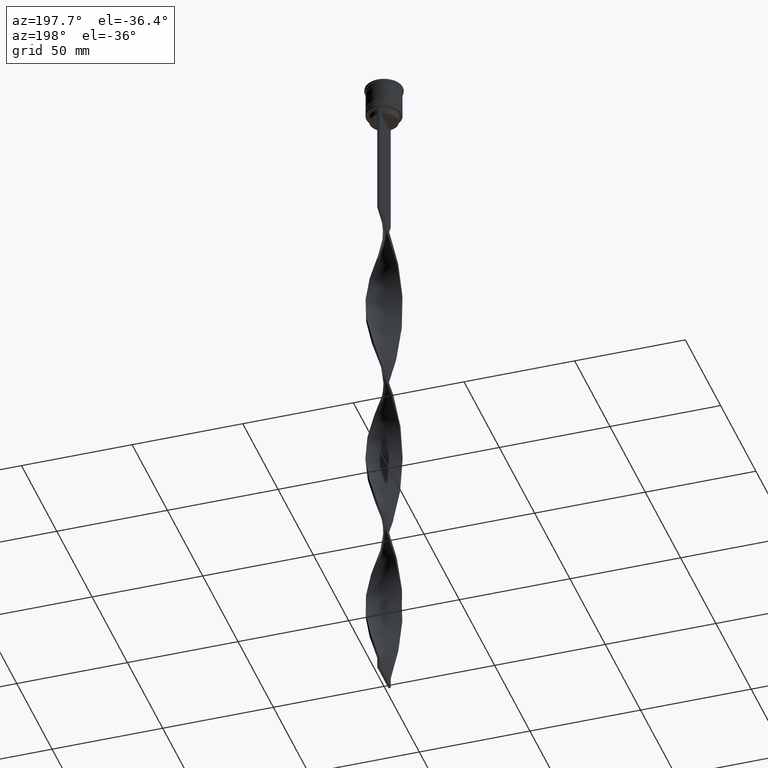
[diagram: clean part render]
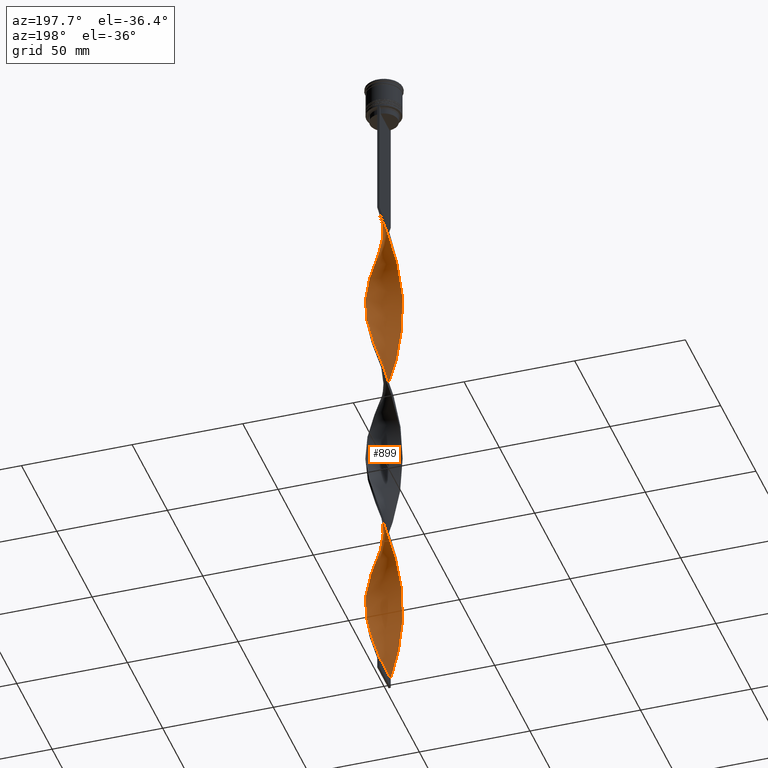
[diagram: same view with one face highlighted and labeled with its STEP entity id]
A machine part, auxiliary view. The second image highlights one B-rep face of the part: STEP entity #899.
In plain terms, the highlighted face is a freeform B-spline surface patch.
Its self-contained STEP definition (entity closure, byte-faithful):
#3 = CARTESIAN_POINT ( 'NONE',  ( -4.830271518912637063, 6.427786469485478271, -86.07500000000003126 ) ) ;
#9 = CARTESIAN_POINT ( 'NONE',  ( -7.685929837894287964, -2.361026126641879941, -194.5250000000000341 ) ) ;
#19 = CARTESIAN_POINT ( 'NONE',  ( -1.996607696852005454, -7.762960627548705084, -220.6333333333333542 ) ) ;
#25 = CARTESIAN_POINT ( 'NONE',  ( -7.685929837894279082, 2.361026126641883938, -102.1416666666666799 ) ) ;
#32 = CARTESIAN_POINT ( 'NONE',  ( -7.221957428453230854, -3.534302299652432033, -198.5416666666667140 ) ) ;
#41 = CARTESIAN_POINT ( 'NONE',  ( -7.979723957281220414, 0.7576315500242798429, -184.4833333333333201 ) ) ;
#43 = CARTESIAN_POINT ( 'NONE',  ( -1.129613654596948624, -7.960649146587686964, -306.9916666666667879 ) ) ;
#48 = CARTESIAN_POINT ( 'NONE',  ( 5.303300858899103076, -6.010407640085653647, -168.4166666666666572 ) ) ;
#58 = VERTEX_POINT ( 'NONE', #1240 ) ;
#62 = EDGE_CURVE ( 'NONE', #58, #2257, #3433, .T. ) ;
#64 = CARTESIAN_POINT ( 'NONE',  ( 5.776330198885578859, 5.593028810685832575, -126.2416666666666742 ) ) ;
#69 = CARTESIAN_POINT ( 'NONE',  ( 3.534302299652432033, 7.221957428453222860, -218.6250000000000284 ) ) ;
#72 = CARTESIAN_POINT ( 'NONE',  ( -6.901056943637166263, 4.077427260010557220, -96.11666666666667425 ) ) ;
#75 = CARTESIAN_POINT ( 'NONE',  ( 3.186420735822192984, 7.355047443376719229, -296.9499999999999886 ) ) ;
#81 = CARTESIAN_POINT ( 'NONE',  ( 6.766028581145814513, 4.297773521152307374, -204.5666666666666629 ) ) ;
#87 = CARTESIAN_POINT ( 'NONE',  ( -1.129613654596947514, 7.960649146587694958, -150.3416666666666401 ) ) ;
#95 = CARTESIAN_POINT ( 'NONE',  ( 6.010407640085652758, 5.303300858899102188, -208.5833333333333428 ) ) ;
#110 = CARTESIAN_POINT ( 'NONE',  ( 7.221957428453222860, -3.534302299652432033, -178.4583333333333144 ) ) ;
#114 = CARTESIAN_POINT ( 'NONE',  ( -6.580156458821117660, -4.620552220368685958, -202.5583333333333371 ) ) ;
#118 = CARTESIAN_POINT ( 'NONE',  ( -7.685929837894279082, 2.361026126641883938, -262.8083333333333371 ) ) ;
#124 = CARTESIAN_POINT ( 'NONE',  ( 7.221957428453231742, 3.534302299652429813, -278.8750000000000000 ) ) ;
#132 = CARTESIAN_POINT ( 'NONE',  ( -5.593028810685829910, -5.776330198885572642, -130.2583333333333826 ) ) ;
#133 = CARTESIAN_POINT ( 'NONE',  ( 7.355047443376714789, 3.186420735822187655, -200.5500000000000114 ) ) ;
#141 = CARTESIAN_POINT ( 'NONE',  ( 7.920097061150122464, 1.385649445451603068, -194.5250000000000341 ) ) ;
#142 = FACE_OUTER_BOUND ( 'NONE', #2757, .T. ) ;
#150 = CARTESIAN_POINT ( 'NONE',  ( -3.765275523391982571, 7.104270692806153420, -242.7250000000000227 ) ) ;
#164 = CARTESIAN_POINT ( 'NONE',  ( -7.823289492240983023, 1.745319890619415837, -104.1500000000000057 ) ) ;
#172 = CARTESIAN_POINT ( 'NONE',  ( -5.303300858899103964, 6.010407640085652758, -248.7500000000000000 ) ) ;
#194 = CARTESIAN_POINT ( 'NONE',  ( -0.5000000000000011102, -7.999999999999996447, -309.0000000000000000 ) ) ;
#213 = CARTESIAN_POINT ( 'NONE',  ( 7.685929837894287076, 2.361026126641884382, -114.1916666666666771 ) ) ;
#234 = CARTESIAN_POINT ( 'NONE',  ( 5.106790515527261043, -6.178243328853345595, -84.06666666666667709 ) ) ;
#256 = CARTESIAN_POINT ( 'NONE',  ( -6.766028581145814513, -4.297773521152308263, -284.9000000000000341 ) ) ;
#273 = CARTESIAN_POINT ( 'NONE',  ( -8.000000000000003553, -0.4999999999999986122, -188.5000000000000000 ) ) ;
#282 = EDGE_CURVE ( 'NONE', #3324, #738, #1195, .T. ) ;
#285 = CARTESIAN_POINT ( 'NONE',  ( 6.580156458821111443, -4.620552220368684182, -174.4416666666666629 ) ) ;
#292 = CARTESIAN_POINT ( 'NONE',  ( -7.920097061150128681, 1.385649445451607509, -182.4749999999999943 ) ) ;
#306 = CARTESIAN_POINT ( 'NONE',  ( 2.607565948252394517, -7.605824193947277045, -158.3750000000000284 ) ) ;
#310 = CARTESIAN_POINT ( 'NONE',  ( -1.129613654596947514, 7.960649146587694958, -150.3416666666666401 ) ) ;
#323 = CARTESIAN_POINT ( 'NONE',  ( -7.355047443376719229, 3.186420735822193429, -176.4499999999999886 ) ) ;
#329 = CARTESIAN_POINT ( 'NONE',  ( -3.186420735822193873, -7.355047443376719229, -216.6166666666666742 ) ) ;
#334 = CARTESIAN_POINT ( 'NONE',  ( -7.999999999999996447, 0.5000000000000006661, -108.1666666666666714 ) ) ;
#340 = CARTESIAN_POINT ( 'NONE',  ( 6.427786469485483600, -4.830271518912642392, -250.7583333333333258 ) ) ;
#351 = CARTESIAN_POINT ( 'NONE',  ( 8.000000000000003553, 0.4999999999999995559, -108.1666666666666714 ) ) ;
#358 = CARTESIAN_POINT ( 'NONE',  ( 0.1296136545969461817, -8.039350853412306819, -150.3416666666666401 ) ) ;
#365 = CARTESIAN_POINT ( 'NONE',  ( 5.593028810685833463, -5.776330198885577971, -246.7416666666667027 ) ) ;
#374 = CARTESIAN_POINT ( 'NONE',  ( -2.947664213147155987, 7.453943633173759409, -156.3666666666666458 ) ) ;
#380 = CARTESIAN_POINT ( 'NONE',  ( 8.039350853412308595, 0.1296136545969493459, -190.5083333333333542 ) ) ;
#385 = CARTESIAN_POINT ( 'NONE',  ( -2.607565948252395849, 7.605824193947274381, -78.04166666666667140 ) ) ;
#386 = CARTESIAN_POINT ( 'NONE',  ( 7.221957428453231742, 3.534302299652429813, -278.8750000000000000 ) ) ;
#387 = CARTESIAN_POINT ( 'NONE',  ( 6.178243328853345595, 5.106790515527260155, -284.9000000000000341 ) ) ;
#393 = CARTESIAN_POINT ( 'NONE',  ( 2.361026126641881717, 7.685929837894279970, -222.6416666666667084 ) ) ;
#399 = CARTESIAN_POINT ( 'NONE',  ( -7.823289492240991905, -1.745319890619414949, -192.5166666666666799 ) ) ;
#405 = CARTESIAN_POINT ( 'NONE',  ( -0.1296136545969472920, 8.039350853412308595, -230.6750000000000114 ) ) ;
#410 = CARTESIAN_POINT ( 'NONE',  ( -0.7576315500242774004, 7.979723957281215085, -72.01666666666667993 ) ) ;
#412 = CARTESIAN_POINT ( 'NONE',  ( 6.427786469485482712, -4.830271518912641504, -250.7583333333332973 ) ) ;
#417 = CARTESIAN_POINT ( 'NONE',  ( 3.186420735822187655, -7.355047443376713900, -160.3833333333333258 ) ) ;
#430 = CARTESIAN_POINT ( 'NONE',  ( -6.178243328853340266, 5.106790515527257490, -252.7666666666667084 ) ) ;
#436 = CARTESIAN_POINT ( 'NONE',  ( 5.776330198885578859, 5.593028810685832575, -286.9083333333333599 ) ) ;
#445 = CARTESIAN_POINT ( 'NONE',  ( -0.1296136545969472642, 8.039350853412310371, -230.6750000000000114 ) ) ;
#457 = CARTESIAN_POINT ( 'NONE',  ( 0.1296136545969488185, 8.039350853412315701, -306.9916666666667311 ) ) ;
#463 = CARTESIAN_POINT ( 'NONE',  ( 6.901056943637166263, -4.077427260010558108, -176.4499999999999886 ) ) ;
#473 = CARTESIAN_POINT ( 'NONE',  ( 7.355047443376714789, 3.186420735822187655, -200.5500000000000114 ) ) ;
#482 = CARTESIAN_POINT ( 'NONE',  ( -6.580156458821108778, 4.620552220368686847, -254.7749999999999488 ) ) ;
#502 = CARTESIAN_POINT ( 'NONE',  ( -7.355047443376713900, -3.186420735822188544, -280.8833333333333826 ) ) ;
#522 = CARTESIAN_POINT ( 'NONE',  ( 8.000000000000003553, 0.4999999999999995559, -108.1666666666666714 ) ) ;
#532 = CARTESIAN_POINT ( 'NONE',  ( -3.534302299652428481, -7.221957428453224637, -298.9583333333333712 ) ) ;
#541 = CARTESIAN_POINT ( 'NONE',  ( -2.361026126641883938, -7.685929837894279082, -302.9750000000000227 ) ) ;
#561 = CARTESIAN_POINT ( 'NONE',  ( 4.077427260010559884, -6.901056943637173369, -80.05000000000001137 ) ) ;
#575 = EDGE_CURVE ( 'NONE', #738, #2257, #868, .T. ) ;
#580 = CARTESIAN_POINT ( 'NONE',  ( -5.593028810685829910, -5.776330198885572642, -290.9250000000000682 ) ) ;
#588 = CARTESIAN_POINT ( 'NONE',  ( -4.620552220368686847, -6.580156458821108778, -134.2750000000000341 ) ) ;
#598 = CARTESIAN_POINT ( 'NONE',  ( 7.823289492240990128, 1.745319890619416059, -272.8500000000000227 ) ) ;
#613 = CARTESIAN_POINT ( 'NONE',  ( -0.7576315500242802869, -7.979723957281220414, -224.6500000000000057 ) ) ;
#636 = CARTESIAN_POINT ( 'NONE',  ( -1.745319890619415393, 7.823289492240990128, -152.3499999999999943 ) ) ;
#643 = CARTESIAN_POINT ( 'NONE',  ( 7.762960627548705084, -1.996607696852003677, -100.1333333333333400 ) ) ;
#653 = CARTESIAN_POINT ( 'NONE',  ( 7.979723957281222191, -0.7576315500242788437, -264.8166666666667197 ) ) ;
#658 = CARTESIAN_POINT ( 'NONE',  ( 2.607565948252399401, 7.605824193947282374, -138.2916666666667140 ) ) ;
#664 = CARTESIAN_POINT ( 'NONE',  ( -7.920097061150122464, -1.385649445451607287, -114.1916666666666771 ) ) ;
#670 = CARTESIAN_POINT ( 'NONE',  ( -7.979723957281220414, 0.7576315500242798429, -184.4833333333333201 ) ) ;
#684 = CARTESIAN_POINT ( 'NONE',  ( -7.221957428453230854, -3.534302299652431589, -198.5416666666666856 ) ) ;
#691 = CARTESIAN_POINT ( 'NONE',  ( -3.765275523391982126, 7.104270692806152532, -242.7250000000000227 ) ) ;
#697 = CARTESIAN_POINT ( 'NONE',  ( -6.580156458821108778, 4.620552220368686847, -94.10833333333334849 ) ) ;
#701 = CARTESIAN_POINT ( 'NONE',  ( 6.901056943637173369, 4.077427260010559884, -280.8833333333333826 ) ) ;
#708 = CARTESIAN_POINT ( 'NONE',  ( 4.077427260010558108, 6.901056943637166263, -216.6166666666666742 ) ) ;
#712 = CARTESIAN_POINT ( 'NONE',  ( -7.920097061150129569, 1.385649445451607287, -182.4749999999999943 ) ) ;
#716 = CARTESIAN_POINT ( 'NONE',  ( 4.077427260010558108, 6.901056943637166263, -216.6166666666666742 ) ) ;
#720 = CARTESIAN_POINT ( 'NONE',  ( 0.7576315500242793988, 7.979723957281220414, -304.9833333333333485 ) ) ;
#727 = CARTESIAN_POINT ( 'NONE',  ( 7.453943633173751415, -2.947664213147155987, -180.4666666666666686 ) ) ;
#731 = CARTESIAN_POINT ( 'NONE',  ( -8.000000000000003553, -0.4999999999999986122, -188.5000000000000000 ) ) ;
#736 = CARTESIAN_POINT ( 'NONE',  ( 5.593028810685831687, 5.776330198885569089, -210.5916666666666686 ) ) ;
#738 = VERTEX_POINT ( 'NONE', #3195 ) ;
#747 = CARTESIAN_POINT ( 'NONE',  ( 0.5000000000000001110, 7.999999999999996447, -228.6666666666666856 ) ) ;
#760 = CARTESIAN_POINT ( 'NONE',  ( -1.996607696852001013, 7.762960627548698866, -236.6999999999999886 ) ) ;
#766 = CARTESIAN_POINT ( 'NONE',  ( -7.762960627548699755, -1.996607696852000569, -116.2000000000000028 ) ) ;
#769 = CARTESIAN_POINT ( 'NONE',  ( 4.297773521152314480, 6.766028581145818066, -292.9333333333333371 ) ) ;
#777 = CARTESIAN_POINT ( 'NONE',  ( 3.534302299652432033, 7.221957428453222860, -218.6250000000000568 ) ) ;
#788 = CARTESIAN_POINT ( 'NONE',  ( -7.762960627548699755, -1.996607696852000569, -276.8666666666667311 ) ) ;
#795 = CARTESIAN_POINT ( 'NONE',  ( -4.830271518912637951, 6.427786469485478271, -246.7416666666666742 ) ) ;
#801 = DIRECTION ( 'NONE',  ( 0.000000000000000000, 1.000000000000000000, 0.000000000000000000 ) ) ;
#812 = CARTESIAN_POINT ( 'NONE',  ( -0.4999999999999991673, 8.000000000000003553, -309.0000000000000000 ) ) ;
#813 = CARTESIAN_POINT ( 'NONE',  ( 6.580156458821115883, 4.620552220368689511, -122.2250000000000085 ) ) ;
#835 = CARTESIAN_POINT ( 'NONE',  ( 7.104270692806157861, -3.765275523391987011, -94.10833333333334849 ) ) ;
#849 = CARTESIAN_POINT ( 'NONE',  ( -7.605824193947274381, -2.607565948252395405, -278.8750000000000000 ) ) ;
#866 = CARTESIAN_POINT ( 'NONE',  ( 1.385649445451610617, 7.920097061150128681, -142.3083333333333371 ) ) ;
#868 = B_SPLINE_CURVE_WITH_KNOTS ( 'NONE', 3,
 ( #1175, #1769, #3991, #812 ),
 .UNSPECIFIED., .F., .F.,
 ( 4, 4 ),
 ( 0.000000000000000000, 1.000000000000000000 ),
 .UNSPECIFIED. ) ;
#887 = CARTESIAN_POINT ( 'NONE',  ( 1.129613654596948402, -7.960649146587693181, -70.00833333333335418 ) ) ;
#894 = CARTESIAN_POINT ( 'NONE',  ( -6.766028581145814513, -4.297773521152308263, -124.2333333333333343 ) ) ;
#899 = ADVANCED_FACE ( 'NONE', ( #142 ), #1445, .T. ) ;
#903 = CARTESIAN_POINT ( 'NONE',  ( -7.453943633173751415, 2.947664213147155543, -100.1333333333333400 ) ) ;
#909 = CARTESIAN_POINT ( 'NONE',  ( 5.106790515527261043, -6.178243328853345595, -244.7333333333333201 ) ) ;
#919 = CARTESIAN_POINT ( 'NONE',  ( 1.996607696852000124, -7.762960627548699755, -156.3666666666666458 ) ) ;
#925 = CARTESIAN_POINT ( 'NONE',  ( 4.077427260010559884, -6.901056943637173369, -240.7166666666666686 ) ) ;
#931 = CARTESIAN_POINT ( 'NONE',  ( 0.5000000000000001110, -8.000000000000003553, -68.00000000000000000 ) ) ;
#935 = CARTESIAN_POINT ( 'NONE',  ( -6.901056943637166263, 4.077427260010557220, -96.11666666666667425 ) ) ;
#942 = CARTESIAN_POINT ( 'NONE',  ( 5.593028810685833463, -5.776330198885577971, -246.7416666666666742 ) ) ;
#952 = CARTESIAN_POINT ( 'NONE',  ( 3.186420735822192984, 7.355047443376719229, -136.2833333333333314 ) ) ;
#958 = CARTESIAN_POINT ( 'NONE',  ( -8.039350853412308595, -0.1296136545969467369, -110.1750000000000114 ) ) ;
#962 = CARTESIAN_POINT ( 'NONE',  ( -6.178243328853346483, -5.106790515527260155, -204.5666666666666629 ) ) ;
#970 = CARTESIAN_POINT ( 'NONE',  ( 7.685929837894287076, 2.361026126641884382, -114.1916666666666771 ) ) ;
#974 = CARTESIAN_POINT ( 'NONE',  ( -7.960649146587686964, 1.129613654596948180, -106.1583333333333456 ) ) ;
#980 = CARTESIAN_POINT ( 'NONE',  ( -7.605824193947279710, 2.607565948252403398, -178.4583333333333144 ) ) ;
#981 = CARTESIAN_POINT ( 'NONE',  ( 7.355047443376719229, -3.186420735822192540, -256.7833333333333599 ) ) ;
#988 = CARTESIAN_POINT ( 'NONE',  ( -6.427786469485480048, 4.830271518912645945, -170.4250000000000398 ) ) ;
#995 = CARTESIAN_POINT ( 'NONE',  ( 7.960649146587686964, -1.129613654596952621, -186.4916666666667027 ) ) ;
#999 = CARTESIAN_POINT ( 'NONE',  ( -4.830271518912637951, 6.427786469485478271, -86.07500000000003126 ) ) ;
#1001 = CARTESIAN_POINT ( 'NONE',  ( 7.920097061150129569, -1.385649445451610173, -262.8083333333333371 ) ) ;
#1009 = CARTESIAN_POINT ( 'NONE',  ( 6.580156458821111443, -4.620552220368684182, -174.4416666666666629 ) ) ;
#1015 = CARTESIAN_POINT ( 'NONE',  ( 4.297773521152314480, 6.766028581145818066, -132.2666666666666799 ) ) ;
#1022 = CARTESIAN_POINT ( 'NONE',  ( -7.453943633173751415, 2.947664213147155543, -260.8000000000000114 ) ) ;
#1030 = CARTESIAN_POINT ( 'NONE',  ( -7.221957428453224637, 3.534302299652428037, -98.12500000000002842 ) ) ;
#1032 = CARTESIAN_POINT ( 'NONE',  ( 1.385649445451610617, 7.920097061150129569, -302.9750000000000227 ) ) ;
#1039 = CARTESIAN_POINT ( 'NONE',  ( 0.1296136545969461817, -8.039350853412308595, -150.3416666666666401 ) ) ;
#1043 = CARTESIAN_POINT ( 'NONE',  ( -2.361026126641883938, 7.685929837894287076, -154.3583333333333201 ) ) ;
#1048 = CARTESIAN_POINT ( 'NONE',  ( -3.186420735822188544, 7.355047443376713900, -240.7166666666666686 ) ) ;
#1060 = CARTESIAN_POINT ( 'NONE',  ( 2.947664213147156875, 7.453943633173751415, -220.6333333333333542 ) ) ;
#1064 = CARTESIAN_POINT ( 'NONE',  ( -1.385649445451607731, -7.920097061150129569, -222.6416666666667084 ) ) ;
#1069 = CARTESIAN_POINT ( 'NONE',  ( -7.979723957281215085, -0.7576315500242769563, -272.8500000000000227 ) ) ;
#1073 = CARTESIAN_POINT ( 'NONE',  ( -7.920097061150121576, -1.385649445451607509, -114.1916666666666771 ) ) ;
#1075 = CARTESIAN_POINT ( 'NONE',  ( 7.960649146587693181, 1.129613654596947736, -270.8416666666666401 ) ) ;
#1082 = CARTESIAN_POINT ( 'NONE',  ( 7.605824193947273493, 2.607565948252397625, -198.5416666666667140 ) ) ;
#1095 = CARTESIAN_POINT ( 'NONE',  ( 0.5000000000000001110, 7.999999999999996447, -228.6666666666666856 ) ) ;
#1098 = CARTESIAN_POINT ( 'NONE',  ( 0.7576315500242793988, 7.979723957281220414, -304.9833333333333485 ) ) ;
#1104 = CARTESIAN_POINT ( 'NONE',  ( 4.297773521152308263, -6.766028581145814513, -164.3999999999999773 ) ) ;
#1120 = CARTESIAN_POINT ( 'NONE',  ( -4.077427260010557220, -6.901056943637166263, -296.9499999999999886 ) ) ;
#1138 = CARTESIAN_POINT ( 'NONE',  ( -3.534302299652428481, -7.221957428453224637, -298.9583333333334281 ) ) ;
#1159 = CARTESIAN_POINT ( 'NONE',  ( 4.620552220368689511, -6.580156458821115883, -82.05833333333336554 ) ) ;
#1175 = CARTESIAN_POINT ( 'NONE',  ( -0.5000000000000011102, -7.999999999999996447, -309.0000000000000000 ) ) ;
#1176 = CARTESIAN_POINT ( 'NONE',  ( 3.534302299652430257, -7.221957428453231742, -78.04166666666667140 ) ) ;
#1193 = CARTESIAN_POINT ( 'NONE',  ( -7.960649146587686964, 1.129613654596948402, -266.8249999999999886 ) ) ;
#1195 =( BOUNDED_CURVE ( )  B_SPLINE_CURVE ( 2, ( #2563, #1284, #1881, #3144, #2198, #2863, #2525, #4085, #1941, #3, #1245, #3753, #1906, #3788, #935, #3512, #903, #25, #3828, #974, #334, #958, #2214, #664, #2254, #2179, #3476, #2844, #1230, #3163, #3436, #1925, #2828, #588, #2236, #1535, #3770, #1858, #3181, #3199, #3120, #358, #1261, #1622, #919, #306, #1576, #2543, #2887, #4102, #48, #1558, #2488, #285, #2510, #3853, #2304, #3248, #1354, #995, #2009, #380, #2976, #141, #2667, #3268, #473, #2375, #1693, #3562, #95, #736, #2628, #2350, #716, #69, #1377, #3899, #2954, #2931, #1095, #405, #2059, #2037, #760, #1326, #1048, #691, #3315, #3940, #3635, #3532, #430, #2328, #3875, #3584, #1022, #118, #2648, #1969, #3919, #1397, #1069, #3226, #788, #1738, #1305, #1665, #3609, #3297, #1642, #1719, #2997, #2909, #2584, #532, #4022, #3391, #3785, #43, #1617 ),
 .UNSPECIFIED., .F., .T. ) 
 B_SPLINE_CURVE_WITH_KNOTS ( ( 3, 2, 2, 2, 2, 2, 2, 2, 2, 2, 2, 2, 2, 2, 2, 2, 2, 2, 2, 2, 2, 2, 2, 2, 2, 2, 2, 2, 2, 2, 2, 2, 2, 2, 2, 2, 2, 2, 2, 2, 2, 2, 2, 2, 2, 2, 2, 2, 2, 2, 2, 2, 2, 2, 2, 2, 2, 2, 2, 2, 3 ),
 ( 0.000000000000000000, 0.01250000000000000243, 0.02500000000000000486, 0.03749999999999999861, 0.05000000000000000971, 0.06250000000000000000, 0.07499999999999999722, 0.08749999999999998057, 0.1000000000000000194, 0.1125000000000000028, 0.1250000000000000000, 0.1375000000000000111, 0.1499999999999999944, 0.1625000000000000056, 0.1749999999999999611, 0.1875000000000000000, 0.2000000000000000389, 0.2124999999999999944, 0.2250000000000000056, 0.2374999999999999611, 0.2500000000000000000, 0.2625000000000000111, 0.2750000000000000222, 0.2874999999999999778, 0.2999999999999999889, 0.3125000000000000000, 0.3250000000000000111, 0.3375000000000000777, 0.3499999999999999223, 0.3624999999999999889, 0.3750000000000000000, 0.3875000000000000111, 0.4000000000000000777, 0.4124999999999999223, 0.4249999999999999889, 0.4375000000000000000, 0.4500000000000000111, 0.4625000000000000777, 0.4749999999999999223, 0.4874999999999999889, 0.5000000000000000000, 0.5124999999999999556, 0.5250000000000000222, 0.5374999999999999778, 0.5500000000000000444, 0.5625000000000000000, 0.5749999999999999556, 0.5875000000000000222, 0.5999999999999999778, 0.6125000000000000444, 0.6250000000000000000, 0.6374999999999999556, 0.6500000000000000222, 0.6624999999999999778, 0.6750000000000001554, 0.6875000000000000000, 0.6999999999999998446, 0.7125000000000000222, 0.7249999999999999778, 0.7375000000000001554, 0.7500000000000000000 ),
 .UNSPECIFIED. ) 
 CURVE ( )  GEOMETRIC_REPRESENTATION_ITEM ( )  RATIONAL_B_SPLINE_CURVE ( ( 1.000000000000000000, 0.9969173337331279638, 1.000000000000000000, 0.9969173337331279638, 1.000000000000000000, 0.9969173337331279638, 1.000000000000000000, 0.9969173337331279638, 1.000000000000000000, 0.9969173337331279638, 1.000000000000000000, 0.9969173337331279638, 1.000000000000000000, 0.9969173337331279638, 1.000000000000000000, 0.9969173337331279638, 1.000000000000000000, 0.9969173337331279638, 1.000000000000000000, 0.9969173337331279638, 1.000000000000000000, 0.9969173337331279638, 1.000000000000000000, 0.9969173337331279638, 1.000000000000000000, 0.9969173337331279638, 1.000000000000000000, 0.9969173337331279638, 1.000000000000000000, 0.9969173337331279638, 1.000000000000000000, 0.9969173337331279638, 1.000000000000000000, 0.9969173337331279638, 1.000000000000000000, 0.9969173337331279638, 1.000000000000000000, 0.9969173337331279638, 1.000000000000000000, 0.9969173337331279638, 1.000000000000000000, 0.9969173337331279638, 1.000000000000000000, 0.9969173337331279638, 1.000000000000000000, 0.9969173337331279638, 1.000000000000000000, 0.9969173337331279638, 1.000000000000000000, 0.9969173337331279638, 1.000000000000000000, 0.9969173337331279638, 1.000000000000000000, 0.9969173337331279638, 1.000000000000000000, 0.9969173337331279638, 1.000000000000000000, 0.9969173337331279638, 1.000000000000000000, 0.9969173337331279638, 1.000000000000000000, 0.9969173337331279638, 1.000000000000000000, 0.9969173337331279638, 1.000000000000000000, 0.9969173337331279638, 1.000000000000000000, 0.9969173337331279638, 1.000000000000000000, 0.9969173337331279638, 1.000000000000000000, 0.9969173337331279638, 1.000000000000000000, 0.9969173337331279638, 1.000000000000000000, 0.9969173337331279638, 1.000000000000000000, 0.9969173337331279638, 1.000000000000000000, 0.9969173337331279638, 1.000000000000000000, 0.9969173337331279638, 1.000000000000000000, 0.9969173337331279638, 1.000000000000000000, 0.9969173337331279638, 1.000000000000000000, 0.9969173337331279638, 1.000000000000000000, 0.9969173337331279638, 1.000000000000000000, 0.9969173337331279638, 1.000000000000000000, 0.9969173337331279638, 1.000000000000000000, 0.9969173337331279638, 1.000000000000000000, 0.9969173337331279638, 1.000000000000000000, 0.9969173337331279638, 1.000000000000000000, 0.9969173337331279638, 1.000000000000000000, 0.9969173337331279638, 1.000000000000000000, 0.9969173337331279638, 1.000000000000000000, 0.9969173337331279638, 1.000000000000000000, 0.9969173337331279638, 1.000000000000000000, 0.9969173337331279638, 1.000000000000000000, 0.9969173337331279638, 1.000000000000000000, 0.9969173337331279638, 1.000000000000000000, 0.9969173337331279638, 1.000000000000000000, 0.9969173337331279638, 1.000000000000000000 ) ) 
 REPRESENTATION_ITEM ( '' )  );
#1214 = CARTESIAN_POINT ( 'NONE',  ( -7.104270692806159637, 3.765275523391984347, -174.4416666666666629 ) ) ;
#1222 = CARTESIAN_POINT ( 'NONE',  ( -6.427786469485477383, -4.830271518912637063, -126.2416666666666600 ) ) ;
#1230 = CARTESIAN_POINT ( 'NONE',  ( -6.766028581145814513, -4.297773521152308263, -124.2333333333333343 ) ) ;
#1235 = CARTESIAN_POINT ( 'NONE',  ( -8.039350853412315701, 0.1296136545969528431, -186.4916666666667027 ) ) ;
#1240 = CARTESIAN_POINT ( 'NONE',  ( 0.5000000000000001110, -8.000000000000003553, -68.00000000000000000 ) ) ;
#1245 = CARTESIAN_POINT ( 'NONE',  ( -5.303300858899103964, 6.010407640085652758, -88.08333333333334281 ) ) ;
#1252 = CARTESIAN_POINT ( 'NONE',  ( -0.4999999999999991673, 8.000000000000003553, -148.3333333333333428 ) ) ;
#1261 = CARTESIAN_POINT ( 'NONE',  ( 0.7576315500242762901, -7.979723957281215085, -152.3499999999999943 ) ) ;
#1268 = CARTESIAN_POINT ( 'NONE',  ( -4.620552220368688623, 6.580156458821115883, -162.3916666666666799 ) ) ;
#1277 = CARTESIAN_POINT ( 'NONE',  ( -7.355047443376719229, 3.186420735822193429, -176.4499999999999886 ) ) ;
#1284 = CARTESIAN_POINT ( 'NONE',  ( -0.1296136545969472920, 8.039350853412308595, -70.00833333333335418 ) ) ;
#1290 = CARTESIAN_POINT ( 'NONE',  ( 7.605824193947281486, -2.607565948252398957, -258.7916666666666288 ) ) ;
#1291 = CARTESIAN_POINT ( 'NONE',  ( 3.534302299652430257, -7.221957428453231742, -238.7083333333333144 ) ) ;
#1300 = CARTESIAN_POINT ( 'NONE',  ( -5.593028810685832575, 5.776330198885578859, -166.4083333333333599 ) ) ;
#1305 = CARTESIAN_POINT ( 'NONE',  ( -7.355047443376713900, -3.186420735822188544, -280.8833333333333826 ) ) ;
#1311 = CARTESIAN_POINT ( 'NONE',  ( 0.5000000000000001110, 7.999999999999996447, -68.00000000000000000 ) ) ;
#1322 = CARTESIAN_POINT ( 'NONE',  ( 7.960649146587693181, 1.129613654596947736, -110.1750000000000114 ) ) ;
#1326 = CARTESIAN_POINT ( 'NONE',  ( -2.607565948252395849, 7.605824193947275269, -238.7083333333333144 ) ) ;
#1329 = CARTESIAN_POINT ( 'NONE',  ( -6.178243328853340266, 5.106790515527257490, -92.09999999999999432 ) ) ;
#1330 = CARTESIAN_POINT ( 'NONE',  ( 4.830271518912643280, 6.427786469485483600, -290.9250000000000682 ) ) ;
#1331 = CARTESIAN_POINT ( 'NONE',  ( 7.605824193947282374, -2.607565948252398957, -258.7916666666666288 ) ) ;
#1339 = CARTESIAN_POINT ( 'NONE',  ( 5.106790515527259267, 6.178243328853339378, -212.6000000000000227 ) ) ;
#1346 = CARTESIAN_POINT ( 'NONE',  ( -1.745319890619415393, 7.823289492240990128, -152.3499999999999943 ) ) ;
#1354 = CARTESIAN_POINT ( 'NONE',  ( 7.823289492240981247, -1.745319890619416725, -184.4833333333333201 ) ) ;
#1361 = CARTESIAN_POINT ( 'NONE',  ( 4.620552220368689511, -6.580156458821115883, -242.7250000000000227 ) ) ;
#1366 = CARTESIAN_POINT ( 'NONE',  ( 8.039350853412310371, 0.1296136545969493459, -190.5083333333333826 ) ) ;
#1371 = CARTESIAN_POINT ( 'NONE',  ( -0.7576315500242802869, -7.979723957281220414, -224.6500000000000057 ) ) ;
#1377 = CARTESIAN_POINT ( 'NONE',  ( 2.947664213147156875, 7.453943633173751415, -220.6333333333333542 ) ) ;
#1383 = CARTESIAN_POINT ( 'NONE',  ( 2.361026126641884826, -7.685929837894286187, -234.6916666666666629 ) ) ;
#1388 = CARTESIAN_POINT ( 'NONE',  ( -5.106790515527258378, -6.178243328853339378, -132.2666666666666799 ) ) ;
#1389 = CARTESIAN_POINT ( 'NONE',  ( -4.620552220368686847, -6.580156458821108778, -134.2750000000000341 ) ) ;
#1397 = CARTESIAN_POINT ( 'NONE',  ( -8.039350853412308595, -0.1296136545969467369, -270.8416666666666401 ) ) ;
#1407 = CARTESIAN_POINT ( 'NONE',  ( -4.297773521152309151, 6.766028581145814513, -244.7333333333333201 ) ) ;
#1423 = CARTESIAN_POINT ( 'NONE',  ( -8.039350853412310371, -0.1296136545969467091, -110.1749999999999972 ) ) ;
#1430 = CARTESIAN_POINT ( 'NONE',  ( 6.901056943637173369, 4.077427260010559884, -120.2166666666666686 ) ) ;
#1445 =( BOUNDED_SURFACE ( )  B_SPLINE_SURFACE ( 1, 2, ( 
 ( #1311, #3880, #410, #2588, #3230, #385, #2912, #2891, #3858, #999, #2280, #3541, #1329, #697, #72, #1030, #3000, #1723, #164, #2693, #3922, #1423, #3637, #1073, #766, #2042, #2820, #3744, #894, #1222, #3134, #132, #1388, #1389, #2617, #3951, #3930, #2067, #2919, #3889, #1680, #1039, #2319, #1982, #1707, #3239, #417, #2942, #1104, #3575, #3642, #3282, #1999, #1009, #463, #110, #727, #3865, #2291, #3595, #3258, #1366, #3325, #2639, #3552, #1082, #133, #2340, #81, #2362, #3911, #2966, #1339, #2020, #708, #777, #1060, #393, #3621, #1654, #747, #445, #2050, #3307, #2658, #1731, #2987, #150, #1407, #795, #172, #2677, #2384, #482, #1748, #3009, #2596, #2142, #3992, #1193, #3426, #3973, #2776, #2125, #1790, #849, #502, #3091, #256, #4050, #3382, #580, #2473, #1808, #1120, #1138, #1507, #541, #2456, #3680, #194 ),
 ( #3737, #887, #2419, #2700, #3402, #1176, #561, #1159, #234, #3048, #2108, #2738, #4010, #835, #3366, #2402, #1829, #3717, #3700, #3067, #522, #1849, #2167, #213, #3660, #3111, #1430, #813, #1467, #1487, #2441, #1771, #2760, #4034, #2087, #3345, #3032, #866, #1448, #2720, #1252, #310, #636, #3835, #2515, #1951, #3484, #1268, #2241, #1565, #3501, #1865, #3518, #1214, #323, #980, #2260, #292, #670, #1235, #273, #1523, #2793, #9, #3445, #32, #2834, #2549, #962, #3127, #3817, #3170, #4068, #2814, #1544, #2531, #1582, #2496, #613, #1913, #4092, #1604, #2850, #3795, #3759, #3778, #925, #4108, #909, #942, #2221, #340, #3186, #2188, #2204, #1290, #3461, #2569, #653, #1929, #1889, #2870, #598, #3150, #3543, #386, #2312, #1647, #2913, #2589, #2332, #1330, #3944, #3923, #2650, #3231, #2937, #3859, #1098, #457, #1724 ) ),
 .UNSPECIFIED., .F., .F., .F. ) 
 B_SPLINE_SURFACE_WITH_KNOTS ( ( 2, 2 ),
 ( 3, 2, 2, 2, 2, 2, 2, 2, 2, 2, 2, 2, 2, 2, 2, 2, 2, 2, 2, 2, 2, 2, 2, 2, 2, 2, 2, 2, 2, 2, 2, 2, 2, 2, 2, 2, 2, 2, 2, 2, 2, 2, 2, 2, 2, 2, 2, 2, 2, 2, 2, 2, 2, 2, 2, 2, 2, 2, 2, 2, 3 ),
 ( 0.000000000000000000, 1.000000000000000000 ),
 ( 0.000000000000000000, 0.01250000000000000069, 0.02500000000000000139, 0.03749999999999999861, 0.05000000000000000278, 0.06250000000000000000, 0.07499999999999999722, 0.08749999999999999445, 0.1000000000000000056, 0.1125000000000000028, 0.1250000000000000000, 0.1375000000000000111, 0.1499999999999999944, 0.1625000000000000056, 0.1749999999999999889, 0.1875000000000000000, 0.2000000000000000111, 0.2124999999999999944, 0.2250000000000000056, 0.2374999999999999889, 0.2500000000000000000, 0.2625000000000000111, 0.2750000000000000222, 0.2874999999999999778, 0.2999999999999999889, 0.3125000000000000000, 0.3250000000000000111, 0.3375000000000000222, 0.3499999999999999778, 0.3624999999999999889, 0.3750000000000000000, 0.3875000000000000111, 0.4000000000000000222, 0.4124999999999999778, 0.4249999999999999889, 0.4375000000000000000, 0.4500000000000000111, 0.4625000000000000222, 0.4749999999999999778, 0.4874999999999999889, 0.5000000000000000000, 0.5124999999999999556, 0.5250000000000000222, 0.5374999999999999778, 0.5500000000000000444, 0.5625000000000000000, 0.5749999999999999556, 0.5875000000000000222, 0.5999999999999999778, 0.6125000000000000444, 0.6250000000000000000, 0.6374999999999999556, 0.6500000000000000222, 0.6624999999999999778, 0.6750000000000000444, 0.6875000000000000000, 0.6999999999999999556, 0.7125000000000000222, 0.7249999999999999778, 0.7375000000000000444, 0.7500000000000000000 ),
 .UNSPECIFIED. ) 
 GEOMETRIC_REPRESENTATION_ITEM ( )  RATIONAL_B_SPLINE_SURFACE ( (
 ( 1.000000000000000000, 0.9969173337331279638, 1.000000000000000000, 0.9969173337331279638, 1.000000000000000000, 0.9969173337331279638, 1.000000000000000000, 0.9969173337331279638, 1.000000000000000000, 0.9969173337331279638, 1.000000000000000000, 0.9969173337331279638, 1.000000000000000000, 0.9969173337331279638, 1.000000000000000000, 0.9969173337331279638, 1.000000000000000000, 0.9969173337331279638, 1.000000000000000000, 0.9969173337331279638, 1.000000000000000000, 0.9969173337331279638, 1.000000000000000000, 0.9969173337331279638, 1.000000000000000000, 0.9969173337331279638, 1.000000000000000000, 0.9969173337331279638, 1.000000000000000000, 0.9969173337331279638, 1.000000000000000000, 0.9969173337331279638, 1.000000000000000000, 0.9969173337331279638, 1.000000000000000000, 0.9969173337331279638, 1.000000000000000000, 0.9969173337331279638, 1.000000000000000000, 0.9969173337331279638, 1.000000000000000000, 0.9969173337331279638, 1.000000000000000000, 0.9969173337331279638, 1.000000000000000000, 0.9969173337331279638, 1.000000000000000000, 0.9969173337331279638, 1.000000000000000000, 0.9969173337331279638, 1.000000000000000000, 0.9969173337331279638, 1.000000000000000000, 0.9969173337331279638, 1.000000000000000000, 0.9969173337331279638, 1.000000000000000000, 0.9969173337331279638, 1.000000000000000000, 0.9969173337331279638, 1.000000000000000000, 0.9969173337331279638, 1.000000000000000000, 0.9969173337331279638, 1.000000000000000000, 0.9969173337331279638, 1.000000000000000000, 0.9969173337331279638, 1.000000000000000000, 0.9969173337331279638, 1.000000000000000000, 0.9969173337331279638, 1.000000000000000000, 0.9969173337331279638, 1.000000000000000000, 0.9969173337331279638, 1.000000000000000000, 0.9969173337331279638, 1.000000000000000000, 0.9969173337331279638, 1.000000000000000000, 0.9969173337331279638, 1.000000000000000000, 0.9969173337331279638, 1.000000000000000000, 0.9969173337331279638, 1.000000000000000000, 0.9969173337331279638, 1.000000000000000000, 0.9969173337331279638, 1.000000000000000000, 0.9969173337331279638, 1.000000000000000000, 0.9969173337331279638, 1.000000000000000000, 0.9969173337331279638, 1.000000000000000000, 0.9969173337331279638, 1.000000000000000000, 0.9969173337331279638, 1.000000000000000000, 0.9969173337331279638, 1.000000000000000000, 0.9969173337331279638, 1.000000000000000000, 0.9969173337331279638, 1.000000000000000000, 0.9969173337331279638, 1.000000000000000000, 0.9969173337331279638, 1.000000000000000000, 0.9969173337331279638, 1.000000000000000000, 0.9969173337331279638, 1.000000000000000000, 0.9969173337331279638, 1.000000000000000000, 0.9969173337331279638, 1.000000000000000000, 0.9969173337331279638, 1.000000000000000000),
 ( 1.000000000000000000, 0.9969173337331279638, 1.000000000000000000, 0.9969173337331279638, 1.000000000000000000, 0.9969173337331279638, 1.000000000000000000, 0.9969173337331279638, 1.000000000000000000, 0.9969173337331279638, 1.000000000000000000, 0.9969173337331279638, 1.000000000000000000, 0.9969173337331279638, 1.000000000000000000, 0.9969173337331279638, 1.000000000000000000, 0.9969173337331279638, 1.000000000000000000, 0.9969173337331279638, 1.000000000000000000, 0.9969173337331279638, 1.000000000000000000, 0.9969173337331279638, 1.000000000000000000, 0.9969173337331279638, 1.000000000000000000, 0.9969173337331279638, 1.000000000000000000, 0.9969173337331279638, 1.000000000000000000, 0.9969173337331279638, 1.000000000000000000, 0.9969173337331279638, 1.000000000000000000, 0.9969173337331279638, 1.000000000000000000, 0.9969173337331279638, 1.000000000000000000, 0.9969173337331279638, 1.000000000000000000, 0.9969173337331279638, 1.000000000000000000, 0.9969173337331279638, 1.000000000000000000, 0.9969173337331279638, 1.000000000000000000, 0.9969173337331279638, 1.000000000000000000, 0.9969173337331279638, 1.000000000000000000, 0.9969173337331279638, 1.000000000000000000, 0.9969173337331279638, 1.000000000000000000, 0.9969173337331279638, 1.000000000000000000, 0.9969173337331279638, 1.000000000000000000, 0.9969173337331279638, 1.000000000000000000, 0.9969173337331279638, 1.000000000000000000, 0.9969173337331279638, 1.000000000000000000, 0.9969173337331279638, 1.000000000000000000, 0.9969173337331279638, 1.000000000000000000, 0.9969173337331279638, 1.000000000000000000, 0.9969173337331279638, 1.000000000000000000, 0.9969173337331279638, 1.000000000000000000, 0.9969173337331279638, 1.000000000000000000, 0.9969173337331279638, 1.000000000000000000, 0.9969173337331279638, 1.000000000000000000, 0.9969173337331279638, 1.000000000000000000, 0.9969173337331279638, 1.000000000000000000, 0.9969173337331279638, 1.000000000000000000, 0.9969173337331279638, 1.000000000000000000, 0.9969173337331279638, 1.000000000000000000, 0.9969173337331279638, 1.000000000000000000, 0.9969173337331279638, 1.000000000000000000, 0.9969173337331279638, 1.000000000000000000, 0.9969173337331279638, 1.000000000000000000, 0.9969173337331279638, 1.000000000000000000, 0.9969173337331279638, 1.000000000000000000, 0.9969173337331279638, 1.000000000000000000, 0.9969173337331279638, 1.000000000000000000, 0.9969173337331279638, 1.000000000000000000, 0.9969173337331279638, 1.000000000000000000, 0.9969173337331279638, 1.000000000000000000, 0.9969173337331279638, 1.000000000000000000, 0.9969173337331279638, 1.000000000000000000, 0.9969173337331279638, 1.000000000000000000, 0.9969173337331279638, 1.000000000000000000) ) ) 
 REPRESENTATION_ITEM ( '' )  SURFACE ( )  );
#1448 = CARTESIAN_POINT ( 'NONE',  ( 0.7576315500242793988, 7.979723957281220414, -144.3166666666666629 ) ) ;
#1467 = CARTESIAN_POINT ( 'NONE',  ( 6.178243328853345595, 5.106790515527260155, -124.2333333333333343 ) ) ;
#1487 = CARTESIAN_POINT ( 'NONE',  ( 5.776330198885578859, 5.593028810685832575, -126.2416666666666600 ) ) ;
#1496 = CARTESIAN_POINT ( 'NONE',  ( 6.010407640085658088, -5.303300858899109294, -88.08333333333334281 ) ) ;
#1507 = CARTESIAN_POINT ( 'NONE',  ( -2.947664213147155543, -7.453943633173751415, -300.9666666666666401 ) ) ;
#1523 = CARTESIAN_POINT ( 'NONE',  ( -7.960649146587693181, -1.129613654596950623, -190.5083333333333826 ) ) ;
#1535 = CARTESIAN_POINT ( 'NONE',  ( -3.534302299652428481, -7.221957428453224637, -138.2916666666667140 ) ) ;
#1544 = CARTESIAN_POINT ( 'NONE',  ( -3.186420735822193873, -7.355047443376719229, -216.6166666666666742 ) ) ;
#1558 = CARTESIAN_POINT ( 'NONE',  ( 5.776330198885569978, -5.593028810685831687, -170.4250000000000398 ) ) ;
#1565 = CARTESIAN_POINT ( 'NONE',  ( -5.593028810685832575, 5.776330198885578859, -166.4083333333333599 ) ) ;
#1569 = CARTESIAN_POINT ( 'NONE',  ( 1.745319890619416503, -7.823289492240990128, -72.01666666666667993 ) ) ;
#1576 = CARTESIAN_POINT ( 'NONE',  ( 3.186420735822187655, -7.355047443376713900, -160.3833333333333258 ) ) ;
#1582 = CARTESIAN_POINT ( 'NONE',  ( -1.996607696852005454, -7.762960627548705084, -220.6333333333333542 ) ) ;
#1587 = CARTESIAN_POINT ( 'NONE',  ( 7.355047443376719229, -3.186420735822192540, -96.11666666666667425 ) ) ;
#1604 = CARTESIAN_POINT ( 'NONE',  ( 1.129613654596948402, -7.960649146587693181, -230.6750000000000114 ) ) ;
#1615 = CARTESIAN_POINT ( 'NONE',  ( -7.104270692806158749, 3.765275523391983903, -174.4416666666666629 ) ) ;
#1617 = CARTESIAN_POINT ( 'NONE',  ( -0.5000000000000011102, -7.999999999999996447, -309.0000000000000000 ) ) ;
#1622 = CARTESIAN_POINT ( 'NONE',  ( 1.385649445451606843, -7.920097061150122464, -154.3583333333333201 ) ) ;
#1627 = CARTESIAN_POINT ( 'NONE',  ( 7.762960627548705084, -1.996607696852003677, -260.8000000000000114 ) ) ;
#1637 = CARTESIAN_POINT ( 'NONE',  ( -6.010407640085656311, 5.303300858899110182, -168.4166666666666572 ) ) ;
#1642 = CARTESIAN_POINT ( 'NONE',  ( -6.010407640085651870, -5.303300858899103076, -288.9166666666666856 ) ) ;
#1647 = CARTESIAN_POINT ( 'NONE',  ( 6.580156458821115883, 4.620552220368689511, -282.8916666666667084 ) ) ;
#1654 = CARTESIAN_POINT ( 'NONE',  ( 1.129613654596953065, 7.960649146587686964, -226.6583333333333883 ) ) ;
#1659 = CARTESIAN_POINT ( 'NONE',  ( -4.830271518912645945, -6.427786469485479159, -210.5916666666666686 ) ) ;
#1665 = CARTESIAN_POINT ( 'NONE',  ( -7.104270692806152532, -3.765275523391982126, -282.8916666666667084 ) ) ;
#1672 = CARTESIAN_POINT ( 'NONE',  ( 8.000000000000003553, 0.4999999999999995559, -268.8333333333333712 ) ) ;
#1680 = CARTESIAN_POINT ( 'NONE',  ( -0.5000000000000011102, -7.999999999999996447, -148.3333333333333428 ) ) ;
#1686 = CARTESIAN_POINT ( 'NONE',  ( 7.823289492240990128, 1.745319890619416059, -112.1833333333333229 ) ) ;
#1693 = CARTESIAN_POINT ( 'NONE',  ( 6.766028581145814513, 4.297773521152307374, -204.5666666666666629 ) ) ;
#1699 = CARTESIAN_POINT ( 'NONE',  ( 7.685929837894287076, 2.361026126641884382, -274.8583333333332916 ) ) ;
#1707 = CARTESIAN_POINT ( 'NONE',  ( 1.996607696852000124, -7.762960627548699755, -156.3666666666666458 ) ) ;
#1719 = CARTESIAN_POINT ( 'NONE',  ( -5.593028810685829910, -5.776330198885572642, -290.9250000000000682 ) ) ;
#1723 = CARTESIAN_POINT ( 'NONE',  ( -7.685929837894279082, 2.361026126641883938, -102.1416666666666941 ) ) ;
#1724 = CARTESIAN_POINT ( 'NONE',  ( -0.4999999999999991673, 8.000000000000003553, -309.0000000000000000 ) ) ;
#1729 = EDGE_CURVE ( 'NONE', #58, #3324, #3331, .T. ) ;
#1731 = CARTESIAN_POINT ( 'NONE',  ( -2.607565948252395849, 7.605824193947274381, -238.7083333333333144 ) ) ;
#1738 = CARTESIAN_POINT ( 'NONE',  ( -7.605824193947275269, -2.607565948252395405, -278.8750000000000000 ) ) ;
#1748 = CARTESIAN_POINT ( 'NONE',  ( -6.901056943637166263, 4.077427260010557220, -256.7833333333333599 ) ) ;
#1769 = CARTESIAN_POINT ( 'NONE',  ( -0.5000000000000004441, -2.666666666666663410, -309.0000000000000000 ) ) ;
#1771 = CARTESIAN_POINT ( 'NONE',  ( 4.830271518912643280, 6.427786469485483600, -130.2583333333333826 ) ) ;
#1790 = CARTESIAN_POINT ( 'NONE',  ( -7.762960627548699755, -1.996607696852000569, -276.8666666666667311 ) ) ;
#1808 = CARTESIAN_POINT ( 'NONE',  ( -4.620552220368686847, -6.580156458821108778, -294.9416666666667197 ) ) ;
#1809 = CARTESIAN_POINT ( 'NONE',  ( 0.5000000000000001110, 7.999999999999996447, -68.00000000000000000 ) ) ;
#1814 = CARTESIAN_POINT ( 'NONE',  ( 5.106790515527261043, -6.178243328853345595, -84.06666666666667709 ) ) ;
#1829 = CARTESIAN_POINT ( 'NONE',  ( 7.762960627548705084, -1.996607696852003677, -100.1333333333333400 ) ) ;
#1849 = CARTESIAN_POINT ( 'NONE',  ( 7.960649146587693181, 1.129613654596947958, -110.1749999999999972 ) ) ;
#1858 = CARTESIAN_POINT ( 'NONE',  ( -2.361026126641883938, -7.685929837894279082, -142.3083333333333371 ) ) ;
#1865 = CARTESIAN_POINT ( 'NONE',  ( -6.427786469485480936, 4.830271518912646833, -170.4250000000000398 ) ) ;
#1881 = CARTESIAN_POINT ( 'NONE',  ( -0.7576315500242774004, 7.979723957281215085, -72.01666666666667993 ) ) ;
#1889 = CARTESIAN_POINT ( 'NONE',  ( 8.000000000000003553, 0.4999999999999995559, -268.8333333333333712 ) ) ;
#1906 = CARTESIAN_POINT ( 'NONE',  ( -6.178243328853340266, 5.106790515527257490, -92.09999999999999432 ) ) ;
#1913 = CARTESIAN_POINT ( 'NONE',  ( -0.1296136545969532317, -8.039350853412315701, -226.6583333333333883 ) ) ;
#1918 = CARTESIAN_POINT ( 'NONE',  ( -6.901056943637174257, -4.077427260010558996, -200.5500000000000114 ) ) ;
#1925 = CARTESIAN_POINT ( 'NONE',  ( -5.593028810685829910, -5.776330198885572642, -130.2583333333333542 ) ) ;
#1929 = CARTESIAN_POINT ( 'NONE',  ( 8.039350853412315701, -0.1296136545969482357, -266.8249999999999886 ) ) ;
#1935 = CARTESIAN_POINT ( 'NONE',  ( -5.106790515527260155, 6.178243328853345595, -164.3999999999999773 ) ) ;
#1941 = CARTESIAN_POINT ( 'NONE',  ( -4.297773521152309151, 6.766028581145814513, -84.06666666666667709 ) ) ;
#1943 = ORIENTED_EDGE ( 'NONE', *, *, #1729, .F. ) ;
#1951 = CARTESIAN_POINT ( 'NONE',  ( -3.534302299652429813, 7.221957428453232630, -158.3750000000000284 ) ) ;
#1962 = CARTESIAN_POINT ( 'NONE',  ( 3.765275523391986567, 7.104270692806156973, -134.2750000000000341 ) ) ;
#1969 = CARTESIAN_POINT ( 'NONE',  ( -7.960649146587686964, 1.129613654596948180, -266.8249999999999886 ) ) ;
#1975 = CARTESIAN_POINT ( 'NONE',  ( 5.106790515527261043, -6.178243328853345595, -244.7333333333333201 ) ) ;
#1982 = CARTESIAN_POINT ( 'NONE',  ( 1.385649445451607065, -7.920097061150121576, -154.3583333333332916 ) ) ;
#1985 = CARTESIAN_POINT ( 'NONE',  ( -7.685929837894287964, -2.361026126641879941, -194.5250000000000341 ) ) ;
#1999 = CARTESIAN_POINT ( 'NONE',  ( 6.178243328853339378, -5.106790515527258378, -172.4333333333333371 ) ) ;
#2005 = CARTESIAN_POINT ( 'NONE',  ( 6.580156458821115883, 4.620552220368689511, -122.2250000000000085 ) ) ;
#2009 = CARTESIAN_POINT ( 'NONE',  ( 7.999999999999996447, -0.5000000000000016653, -188.5000000000000000 ) ) ;
#2020 = CARTESIAN_POINT ( 'NONE',  ( 4.620552220368685070, 6.580156458821110554, -214.6083333333333769 ) ) ;
#2037 = CARTESIAN_POINT ( 'NONE',  ( -1.385649445451607731, 7.920097061150122464, -234.6916666666666629 ) ) ;
#2042 = CARTESIAN_POINT ( 'NONE',  ( -7.605824193947274381, -2.607565948252395405, -118.2083333333333144 ) ) ;
#2050 = CARTESIAN_POINT ( 'NONE',  ( -0.7576315500242774004, 7.979723957281215085, -232.6833333333333371 ) ) ;
#2059 = CARTESIAN_POINT ( 'NONE',  ( -0.7576315500242774004, 7.979723957281215085, -232.6833333333333371 ) ) ;
#2067 = CARTESIAN_POINT ( 'NONE',  ( -2.361026126641883938, -7.685929837894279082, -142.3083333333333371 ) ) ;
#2087 = CARTESIAN_POINT ( 'NONE',  ( 3.186420735822192984, 7.355047443376719229, -136.2833333333333314 ) ) ;
#2108 = CARTESIAN_POINT ( 'NONE',  ( 6.010407640085658088, -5.303300858899109294, -88.08333333333334281 ) ) ;
#2123 = ORIENTED_EDGE ( 'NONE', *, *, #282, .F. ) ;
#2125 = CARTESIAN_POINT ( 'NONE',  ( -7.920097061150121576, -1.385649445451607509, -274.8583333333332916 ) ) ;
#2134 = CARTESIAN_POINT ( 'NONE',  ( 2.947664213147156875, -7.453943633173757632, -76.03333333333334565 ) ) ;
#2142 = CARTESIAN_POINT ( 'NONE',  ( -7.685929837894279082, 2.361026126641883938, -262.8083333333332803 ) ) ;
#2167 = CARTESIAN_POINT ( 'NONE',  ( 7.823289492240990128, 1.745319890619416059, -112.1833333333333229 ) ) ;
#2179 = CARTESIAN_POINT ( 'NONE',  ( -7.605824193947275269, -2.607565948252395405, -118.2083333333333286 ) ) ;
#2188 = CARTESIAN_POINT ( 'NONE',  ( 7.104270692806157861, -3.765275523391987011, -254.7749999999999488 ) ) ;
#2198 = CARTESIAN_POINT ( 'NONE',  ( -1.996607696852001013, 7.762960627548698866, -76.03333333333334565 ) ) ;
#2204 = CARTESIAN_POINT ( 'NONE',  ( 7.355047443376719229, -3.186420735822192540, -256.7833333333333599 ) ) ;
#2209 = CARTESIAN_POINT ( 'NONE',  ( 1.129613654596948180, -7.960649146587693181, -70.00833333333335418 ) ) ;
#2214 = CARTESIAN_POINT ( 'NONE',  ( -7.979723957281215085, -0.7576315500242769563, -112.1833333333333229 ) ) ;
#2221 = CARTESIAN_POINT ( 'NONE',  ( 6.010407640085658088, -5.303300858899109294, -248.7500000000000000 ) ) ;
#2231 = CARTESIAN_POINT ( 'NONE',  ( 0.7576315500242793988, 7.979723957281220414, -144.3166666666666629 ) ) ;
#2236 = CARTESIAN_POINT ( 'NONE',  ( -4.077427260010557220, -6.901056943637166263, -136.2833333333333314 ) ) ;
#2241 = CARTESIAN_POINT ( 'NONE',  ( -5.106790515527260155, 6.178243328853345595, -164.3999999999999773 ) ) ;
#2249 = CARTESIAN_POINT ( 'NONE',  ( 7.453943633173759409, 2.947664213147156431, -116.2000000000000028 ) ) ;
#2254 = CARTESIAN_POINT ( 'NONE',  ( -7.762960627548699755, -1.996607696852000569, -116.2000000000000028 ) ) ;
#2257 = VERTEX_POINT ( 'NONE', #2642 ) ;
#2260 = CARTESIAN_POINT ( 'NONE',  ( -7.762960627548705084, 1.996607696852004565, -180.4666666666666686 ) ) ;
#2261 = CARTESIAN_POINT ( 'NONE',  ( 6.766028581145818954, -4.297773521152313592, -252.7666666666667084 ) ) ;
#2268 = CARTESIAN_POINT ( 'NONE',  ( -7.762960627548705084, 1.996607696852004565, -180.4666666666666686 ) ) ;
#2280 = CARTESIAN_POINT ( 'NONE',  ( -5.303300858899103964, 6.010407640085652758, -88.08333333333334281 ) ) ;
#2283 = CARTESIAN_POINT ( 'NONE',  ( 4.077427260010559884, -6.901056943637173369, -240.7166666666666686 ) ) ;
#2291 = CARTESIAN_POINT ( 'NONE',  ( 7.823289492240981247, -1.745319890619416725, -184.4833333333333201 ) ) ;
#2297 = CARTESIAN_POINT ( 'NONE',  ( -7.605824193947280598, 2.607565948252403398, -178.4583333333333428 ) ) ;
#2304 = CARTESIAN_POINT ( 'NONE',  ( 7.453943633173751415, -2.947664213147155987, -180.4666666666666686 ) ) ;
#2312 = CARTESIAN_POINT ( 'NONE',  ( 6.901056943637173369, 4.077427260010559884, -280.8833333333333826 ) ) ;
#2313 = CARTESIAN_POINT ( 'NONE',  ( 7.979723957281222191, -0.7576315500242788437, -264.8166666666667197 ) ) ;
#2319 = CARTESIAN_POINT ( 'NONE',  ( 0.7576315500242762901, -7.979723957281215085, -152.3499999999999943 ) ) ;
#2323 = CARTESIAN_POINT ( 'NONE',  ( -8.039350853412315701, 0.1296136545969528431, -186.4916666666667027 ) ) ;
#2328 = CARTESIAN_POINT ( 'NONE',  ( -6.580156458821108778, 4.620552220368686847, -254.7749999999999773 ) ) ;
#2332 = CARTESIAN_POINT ( 'NONE',  ( 5.303300858899110182, 6.010407640085656311, -288.9166666666666856 ) ) ;
#2340 = CARTESIAN_POINT ( 'NONE',  ( 7.104270692806155196, 3.765275523391978574, -202.5583333333333371 ) ) ;
#2345 = CARTESIAN_POINT ( 'NONE',  ( -0.1296136545969532317, -8.039350853412315701, -226.6583333333333883 ) ) ;
#2350 = CARTESIAN_POINT ( 'NONE',  ( 4.620552220368685070, 6.580156458821110554, -214.6083333333333769 ) ) ;
#2356 = CARTESIAN_POINT ( 'NONE',  ( 7.453943633173759409, 2.947664213147156431, -276.8666666666667311 ) ) ;
#2362 = CARTESIAN_POINT ( 'NONE',  ( 6.427786469485477383, 4.830271518912640616, -206.5750000000000171 ) ) ;
#2375 = CARTESIAN_POINT ( 'NONE',  ( 7.104270692806154308, 3.765275523391978574, -202.5583333333333371 ) ) ;
#2384 = CARTESIAN_POINT ( 'NONE',  ( -6.178243328853340266, 5.106790515527257490, -252.7666666666667084 ) ) ;
#2402 = CARTESIAN_POINT ( 'NONE',  ( 7.605824193947281486, -2.607565948252398957, -98.12500000000002842 ) ) ;
#2419 = CARTESIAN_POINT ( 'NONE',  ( 1.745319890619416503, -7.823289492240990128, -72.01666666666667993 ) ) ;
#2441 = CARTESIAN_POINT ( 'NONE',  ( 5.303300858899110182, 6.010407640085656311, -128.2500000000000000 ) ) ;
#2456 = CARTESIAN_POINT ( 'NONE',  ( -1.745319890619416281, -7.823289492240981247, -304.9833333333333485 ) ) ;
#2464 = CARTESIAN_POINT ( 'NONE',  ( 6.427786469485482712, -4.830271518912641504, -90.09166666666666856 ) ) ;
#2473 = CARTESIAN_POINT ( 'NONE',  ( -5.106790515527258378, -6.178243328853339378, -292.9333333333333371 ) ) ;
#2488 = CARTESIAN_POINT ( 'NONE',  ( 6.178243328853339378, -5.106790515527258378, -172.4333333333333371 ) ) ;
#2496 = CARTESIAN_POINT ( 'NONE',  ( -1.385649445451607953, -7.920097061150128681, -222.6416666666667084 ) ) ;
#2510 = CARTESIAN_POINT ( 'NONE',  ( 6.901056943637166263, -4.077427260010558108, -176.4499999999999886 ) ) ;
#2515 = CARTESIAN_POINT ( 'NONE',  ( -2.947664213147155987, 7.453943633173759409, -156.3666666666666458 ) ) ;
#2525 = CARTESIAN_POINT ( 'NONE',  ( -3.186420735822188544, 7.355047443376713900, -80.05000000000001137 ) ) ;
#2531 = CARTESIAN_POINT ( 'NONE',  ( -2.607565948252403842, -7.605824193947279710, -218.6250000000000568 ) ) ;
#2538 = CARTESIAN_POINT ( 'NONE',  ( -6.178243328853346483, -5.106790515527260155, -204.5666666666666629 ) ) ;
#2543 = CARTESIAN_POINT ( 'NONE',  ( 3.765275523391981238, -7.104270692806152532, -162.3916666666666799 ) ) ;
#2549 = CARTESIAN_POINT ( 'NONE',  ( -6.580156458821117660, -4.620552220368685958, -202.5583333333333371 ) ) ;
#2559 = CARTESIAN_POINT ( 'NONE',  ( -7.453943633173759409, -2.947664213147155543, -196.5333333333333314 ) ) ;
#2563 = CARTESIAN_POINT ( 'NONE',  ( 0.5000000000000001110, 7.999999999999996447, -68.00000000000000000 ) ) ;
#2569 = CARTESIAN_POINT ( 'NONE',  ( 7.920097061150128681, -1.385649445451610173, -262.8083333333332803 ) ) ;
#2570 = CARTESIAN_POINT ( 'NONE',  ( 2.607565948252399401, 7.605824193947282374, -298.9583333333333712 ) ) ;
#2579 = CARTESIAN_POINT ( 'NONE',  ( 1.385649445451610617, 7.920097061150129569, -142.3083333333333371 ) ) ;
#2584 = CARTESIAN_POINT ( 'NONE',  ( -4.077427260010557220, -6.901056943637166263, -296.9499999999999886 ) ) ;
#2588 = CARTESIAN_POINT ( 'NONE',  ( -1.385649445451607953, 7.920097061150121576, -74.02500000000000568 ) ) ;
#2589 = CARTESIAN_POINT ( 'NONE',  ( 5.776330198885578859, 5.593028810685832575, -286.9083333333334167 ) ) ;
#2596 = CARTESIAN_POINT ( 'NONE',  ( -7.453943633173751415, 2.947664213147155543, -260.8000000000000114 ) ) ;
#2600 = CARTESIAN_POINT ( 'NONE',  ( 6.901056943637173369, 4.077427260010559884, -120.2166666666666686 ) ) ;
#2611 = CARTESIAN_POINT ( 'NONE',  ( 8.039350853412315701, -0.1296136545969482634, -266.8249999999999886 ) ) ;
#2617 = CARTESIAN_POINT ( 'NONE',  ( -4.077427260010557220, -6.901056943637166263, -136.2833333333333314 ) ) ;
#2623 = CARTESIAN_POINT ( 'NONE',  ( -3.765275523391984791, -7.104270692806157861, -214.6083333333333769 ) ) ;
#2628 = CARTESIAN_POINT ( 'NONE',  ( 5.106790515527259267, 6.178243328853339378, -212.6000000000000227 ) ) ;
#2634 = CARTESIAN_POINT ( 'NONE',  ( 7.823289492240990128, 1.745319890619416059, -272.8500000000000227 ) ) ;
#2639 = CARTESIAN_POINT ( 'NONE',  ( 7.920097061150121576, 1.385649445451603068, -194.5250000000000341 ) ) ;
#2642 = CARTESIAN_POINT ( 'NONE',  ( -0.4999999999999991673, 8.000000000000003553, -309.0000000000000000 ) ) ;
#2643 = CARTESIAN_POINT ( 'NONE',  ( 1.129613654596948180, -7.960649146587693181, -230.6750000000000114 ) ) ;
#2648 = CARTESIAN_POINT ( 'NONE',  ( -7.823289492240983023, 1.745319890619415837, -264.8166666666667197 ) ) ;
#2650 = CARTESIAN_POINT ( 'NONE',  ( 3.186420735822192984, 7.355047443376719229, -296.9499999999999886 ) ) ;
#2651 = CARTESIAN_POINT ( 'NONE',  ( 2.947664213147156875, -7.453943633173757632, -236.6999999999999886 ) ) ;
#2656 = ORIENTED_EDGE ( 'NONE', *, *, #62, .T. ) ;
#2658 = CARTESIAN_POINT ( 'NONE',  ( -1.996607696852001013, 7.762960627548698866, -236.6999999999999886 ) ) ;
#2667 = CARTESIAN_POINT ( 'NONE',  ( 7.762960627548699755, 1.996607696851999680, -196.5333333333333314 ) ) ;
#2677 = CARTESIAN_POINT ( 'NONE',  ( -5.776330198885572642, 5.593028810685829022, -250.7583333333333258 ) ) ;
#2693 = CARTESIAN_POINT ( 'NONE',  ( -7.960649146587686964, 1.129613654596948402, -106.1583333333333456 ) ) ;
#2700 = CARTESIAN_POINT ( 'NONE',  ( 2.361026126641884826, -7.685929837894286187, -74.02500000000000568 ) ) ;
#2720 = CARTESIAN_POINT ( 'NONE',  ( 0.1296136545969488185, 8.039350853412315701, -146.3250000000000171 ) ) ;
#2738 = CARTESIAN_POINT ( 'NONE',  ( 6.427786469485483600, -4.830271518912642392, -90.09166666666666856 ) ) ;
#2757 = EDGE_LOOP ( 'NONE', ( #1943, #2656, #3405, #2123 ) ) ;
#2760 = CARTESIAN_POINT ( 'NONE',  ( 4.297773521152314480, 6.766028581145818066, -132.2666666666666799 ) ) ;
#2776 = CARTESIAN_POINT ( 'NONE',  ( -7.979723957281215085, -0.7576315500242769563, -272.8500000000000227 ) ) ;
#2782 = CARTESIAN_POINT ( 'NONE',  ( 7.104270692806156973, -3.765275523391986567, -94.10833333333334849 ) ) ;
#2793 = CARTESIAN_POINT ( 'NONE',  ( -7.823289492240991905, -1.745319890619414949, -192.5166666666666799 ) ) ;
#2814 = CARTESIAN_POINT ( 'NONE',  ( -3.765275523391985235, -7.104270692806158749, -214.6083333333333769 ) ) ;
#2820 = CARTESIAN_POINT ( 'NONE',  ( -7.355047443376713900, -3.186420735822188544, -120.2166666666666686 ) ) ;
#2828 = CARTESIAN_POINT ( 'NONE',  ( -5.106790515527258378, -6.178243328853339378, -132.2666666666666799 ) ) ;
#2834 = CARTESIAN_POINT ( 'NONE',  ( -6.901056943637174257, -4.077427260010558996, -200.5500000000000114 ) ) ;
#2839 = CARTESIAN_POINT ( 'NONE',  ( 2.361026126641884826, -7.685929837894286187, -74.02500000000000568 ) ) ;
#2844 = CARTESIAN_POINT ( 'NONE',  ( -7.104270692806152532, -3.765275523391982126, -122.2250000000000085 ) ) ;
#2850 = CARTESIAN_POINT ( 'NONE',  ( 1.745319890619416503, -7.823289492240990128, -232.6833333333333371 ) ) ;
#2857 = CARTESIAN_POINT ( 'NONE',  ( -2.607565948252403842, -7.605824193947280598, -218.6250000000000284 ) ) ;
#2863 = CARTESIAN_POINT ( 'NONE',  ( -2.607565948252395849, 7.605824193947275269, -78.04166666666667140 ) ) ;
#2870 = CARTESIAN_POINT ( 'NONE',  ( 7.960649146587693181, 1.129613654596947958, -270.8416666666666401 ) ) ;
#2881 = CARTESIAN_POINT ( 'NONE',  ( 6.178243328853345595, 5.106790515527260155, -124.2333333333333343 ) ) ;
#2887 = CARTESIAN_POINT ( 'NONE',  ( 4.297773521152308263, -6.766028581145814513, -164.3999999999999773 ) ) ;
#2891 = CARTESIAN_POINT ( 'NONE',  ( -3.765275523391982571, 7.104270692806153420, -82.05833333333336554 ) ) ;
#2893 = CARTESIAN_POINT ( 'NONE',  ( 4.830271518912642392, 6.427786469485482712, -290.9250000000000682 ) ) ;
#2903 = CARTESIAN_POINT ( 'NONE',  ( -4.620552220368688623, 6.580156458821115883, -162.3916666666666799 ) ) ;
#2909 = CARTESIAN_POINT ( 'NONE',  ( -4.620552220368686847, -6.580156458821108778, -294.9416666666667197 ) ) ;
#2912 = CARTESIAN_POINT ( 'NONE',  ( -3.186420735822188544, 7.355047443376713900, -80.05000000000001137 ) ) ;
#2913 = CARTESIAN_POINT ( 'NONE',  ( 6.178243328853345595, 5.106790515527260155, -284.9000000000000341 ) ) ;
#2919 = CARTESIAN_POINT ( 'NONE',  ( -1.745319890619416281, -7.823289492240981247, -144.3166666666666629 ) ) ;
#2924 = CARTESIAN_POINT ( 'NONE',  ( -4.297773521152315368, -6.766028581145818066, -212.6000000000000227 ) ) ;
#2931 = CARTESIAN_POINT ( 'NONE',  ( 1.129613654596953065, 7.960649146587686964, -226.6583333333333883 ) ) ;
#2937 = CARTESIAN_POINT ( 'NONE',  ( 1.996607696852004121, 7.762960627548705084, -300.9666666666666401 ) ) ;
#2938 = CARTESIAN_POINT ( 'NONE',  ( 3.765275523391986567, 7.104270692806156973, -294.9416666666667197 ) ) ;
#2942 = CARTESIAN_POINT ( 'NONE',  ( 3.765275523391981682, -7.104270692806153420, -162.3916666666666799 ) ) ;
#2948 = CARTESIAN_POINT ( 'NONE',  ( -3.534302299652429813, 7.221957428453232630, -158.3750000000000284 ) ) ;
#2954 = CARTESIAN_POINT ( 'NONE',  ( 1.745319890619417169, 7.823289492240981247, -224.6500000000000057 ) ) ;
#2966 = CARTESIAN_POINT ( 'NONE',  ( 5.593028810685831687, 5.776330198885569089, -210.5916666666666686 ) ) ;
#2976 = CARTESIAN_POINT ( 'NONE',  ( 7.979723957281213309, 0.7576315500242758461, -192.5166666666666799 ) ) ;
#2987 = CARTESIAN_POINT ( 'NONE',  ( -3.186420735822188544, 7.355047443376713900, -240.7166666666666686 ) ) ;
#2997 = CARTESIAN_POINT ( 'NONE',  ( -5.106790515527258378, -6.178243328853339378, -292.9333333333333371 ) ) ;
#3000 = CARTESIAN_POINT ( 'NONE',  ( -7.453943633173751415, 2.947664213147155543, -100.1333333333333400 ) ) ;
#3009 = CARTESIAN_POINT ( 'NONE',  ( -7.221957428453224637, 3.534302299652428037, -258.7916666666666288 ) ) ;
#3032 = CARTESIAN_POINT ( 'NONE',  ( 1.996607696852004121, 7.762960627548705084, -140.3000000000000114 ) ) ;
#3038 = CARTESIAN_POINT ( 'NONE',  ( 0.5000000000000001110, -8.000000000000003553, -68.00000000000000000 ) ) ;
#3048 = CARTESIAN_POINT ( 'NONE',  ( 5.593028810685833463, -5.776330198885577971, -86.07500000000003126 ) ) ;
#3067 = CARTESIAN_POINT ( 'NONE',  ( 8.039350853412315701, -0.1296136545969482357, -106.1583333333333456 ) ) ;
#3076 = CARTESIAN_POINT ( 'NONE',  ( 5.593028810685833463, -5.776330198885577971, -86.07500000000003126 ) ) ;
#3091 = CARTESIAN_POINT ( 'NONE',  ( -7.104270692806153420, -3.765275523391982571, -282.8916666666667084 ) ) ;
#3111 = CARTESIAN_POINT ( 'NONE',  ( 7.221957428453231742, 3.534302299652429813, -118.2083333333333144 ) ) ;
#3120 = CARTESIAN_POINT ( 'NONE',  ( -0.5000000000000011102, -7.999999999999996447, -148.3333333333333428 ) ) ;
#3127 = CARTESIAN_POINT ( 'NONE',  ( -5.776330198885577083, -5.593028810685835239, -206.5750000000000171 ) ) ;
#3134 = CARTESIAN_POINT ( 'NONE',  ( -6.010407640085651870, -5.303300858899103076, -128.2500000000000000 ) ) ;
#3139 = VECTOR ( 'NONE', #801, 1000.000000000000000 ) ;
#3144 = CARTESIAN_POINT ( 'NONE',  ( -1.385649445451607731, 7.920097061150122464, -74.02500000000000568 ) ) ;
#3150 = CARTESIAN_POINT ( 'NONE',  ( 7.685929837894287076, 2.361026126641884382, -274.8583333333332916 ) ) ;
#3163 = CARTESIAN_POINT ( 'NONE',  ( -6.427786469485477383, -4.830271518912636175, -126.2416666666666742 ) ) ;
#3170 = CARTESIAN_POINT ( 'NONE',  ( -4.830271518912646833, -6.427786469485480048, -210.5916666666666686 ) ) ;
#3175 = CARTESIAN_POINT ( 'NONE',  ( -5.303300858899111070, -6.010407640085655423, -208.5833333333333428 ) ) ;
#3181 = CARTESIAN_POINT ( 'NONE',  ( -1.745319890619416281, -7.823289492240981247, -144.3166666666666629 ) ) ;
#3186 = CARTESIAN_POINT ( 'NONE',  ( 6.766028581145818954, -4.297773521152313592, -252.7666666666667084 ) ) ;
#3193 = CARTESIAN_POINT ( 'NONE',  ( 1.996607696852004121, 7.762960627548705084, -140.3000000000000114 ) ) ;
#3195 = CARTESIAN_POINT ( 'NONE',  ( -0.5000000000000011102, -7.999999999999996447, -309.0000000000000000 ) ) ;
#3199 = CARTESIAN_POINT ( 'NONE',  ( -1.129613654596948624, -7.960649146587686964, -146.3250000000000171 ) ) ;
#3221 = CARTESIAN_POINT ( 'NONE',  ( 0.1296136545969487908, 8.039350853412315701, -146.3250000000000171 ) ) ;
#3226 = CARTESIAN_POINT ( 'NONE',  ( -7.920097061150122464, -1.385649445451607287, -274.8583333333332916 ) ) ;
#3230 = CARTESIAN_POINT ( 'NONE',  ( -1.996607696852001013, 7.762960627548698866, -76.03333333333334565 ) ) ;
#3231 = CARTESIAN_POINT ( 'NONE',  ( 2.607565948252399401, 7.605824193947281486, -298.9583333333334281 ) ) ;
#3232 = CARTESIAN_POINT ( 'NONE',  ( 6.580156458821115883, 4.620552220368689511, -282.8916666666667084 ) ) ;
#3239 = CARTESIAN_POINT ( 'NONE',  ( 2.607565948252394961, -7.605824193947276157, -158.3750000000000284 ) ) ;
#3243 = CARTESIAN_POINT ( 'NONE',  ( 7.979723957281222191, -0.7576315500242788437, -104.1500000000000057 ) ) ;
#3248 = CARTESIAN_POINT ( 'NONE',  ( 7.685929837894279970, -2.361026126641881273, -182.4749999999999943 ) ) ;
#3258 = CARTESIAN_POINT ( 'NONE',  ( 7.999999999999996447, -0.5000000000000016653, -188.5000000000000000 ) ) ;
#3263 = CARTESIAN_POINT ( 'NONE',  ( -7.960649146587693181, -1.129613654596950401, -190.5083333333333542 ) ) ;
#3268 = CARTESIAN_POINT ( 'NONE',  ( 7.605824193947274381, 2.607565948252397625, -198.5416666666666856 ) ) ;
#3282 = CARTESIAN_POINT ( 'NONE',  ( 5.776330198885569978, -5.593028810685831687, -170.4250000000000398 ) ) ;
#3297 = CARTESIAN_POINT ( 'NONE',  ( -6.427786469485477383, -4.830271518912636175, -286.9083333333333599 ) ) ;
#3307 = CARTESIAN_POINT ( 'NONE',  ( -1.385649445451607953, 7.920097061150121576, -234.6916666666666629 ) ) ;
#3315 = CARTESIAN_POINT ( 'NONE',  ( -4.297773521152309151, 6.766028581145814513, -244.7333333333333201 ) ) ;
#3324 = VERTEX_POINT ( 'NONE', #1809 ) ;
#3325 = CARTESIAN_POINT ( 'NONE',  ( 7.979723957281213309, 0.7576315500242758461, -192.5166666666666799 ) ) ;
#3331 = LINE ( 'NONE', #3038, #3139 ) ;
#3345 = CARTESIAN_POINT ( 'NONE',  ( 2.607565948252399401, 7.605824193947281486, -138.2916666666667140 ) ) ;
#3366 = CARTESIAN_POINT ( 'NONE',  ( 7.355047443376719229, -3.186420735822192540, -96.11666666666667425 ) ) ;
#3382 = CARTESIAN_POINT ( 'NONE',  ( -6.010407640085651870, -5.303300858899103076, -288.9166666666666856 ) ) ;
#3389 = CARTESIAN_POINT ( 'NONE',  ( 4.077427260010559884, -6.901056943637173369, -80.05000000000001137 ) ) ;
#3391 = CARTESIAN_POINT ( 'NONE',  ( -2.361026126641883938, -7.685929837894279082, -302.9750000000000227 ) ) ;
#3402 = CARTESIAN_POINT ( 'NONE',  ( 2.947664213147156875, -7.453943633173757632, -76.03333333333334565 ) ) ;
#3405 = ORIENTED_EDGE ( 'NONE', *, *, #575, .F. ) ;
#3426 = CARTESIAN_POINT ( 'NONE',  ( -7.999999999999996447, 0.5000000000000006661, -268.8333333333333712 ) ) ;
#3433 =( BOUNDED_CURVE ( )  B_SPLINE_CURVE ( 2, ( #931, #2209, #1569, #2839, #2134, #3706, #3389, #4040, #1814, #3076, #1496, #2464, #3726, #2782, #1587, #3824, #643, #3870, #3243, #3492, #351, #1322, #1686, #970, #2249, #3528, #2600, #2005, #2881, #64, #3506, #3894, #1015, #1962, #952, #658, #3193, #2579, #2231, #3221, #3847, #87, #1346, #1043, #374, #2948, #3579, #2903, #1935, #1300, #1637, #988, #3557, #1615, #1277, #2297, #2268, #712, #41, #2323, #731, #3263, #399, #1985, #2559, #684, #1918, #114, #2538, #3804, #3175, #1659, #2924, #2623, #329, #2857, #19, #1064, #1371, #2345, #3601, #2643, #3915, #1383, #2651, #1291, #2283, #1361, #1975, #365, #3544, #412, #2261, #3924, #981, #1331, #1627, #1001, #2313, #2611, #1672, #1075, #2634, #1699, #2356, #124, #701, #3232, #387, #436, #3883, #2893, #769, #2938, #75, #2570, #3568, #1032, #720, #3615, #3836 ),
 .UNSPECIFIED., .F., .T. ) 
 B_SPLINE_CURVE_WITH_KNOTS ( ( 3, 2, 2, 2, 2, 2, 2, 2, 2, 2, 2, 2, 2, 2, 2, 2, 2, 2, 2, 2, 2, 2, 2, 2, 2, 2, 2, 2, 2, 2, 2, 2, 2, 2, 2, 2, 2, 2, 2, 2, 2, 2, 2, 2, 2, 2, 2, 2, 2, 2, 2, 2, 2, 2, 2, 2, 2, 2, 2, 2, 3 ),
 ( 0.000000000000000000, 0.01250000000000000243, 0.02500000000000000486, 0.03749999999999999861, 0.05000000000000000971, 0.06250000000000000000, 0.07499999999999999722, 0.08749999999999998057, 0.1000000000000000194, 0.1125000000000000028, 0.1250000000000000000, 0.1375000000000000111, 0.1499999999999999944, 0.1625000000000000056, 0.1749999999999999611, 0.1875000000000000000, 0.2000000000000000389, 0.2124999999999999944, 0.2250000000000000056, 0.2374999999999999611, 0.2500000000000000000, 0.2625000000000000111, 0.2750000000000000222, 0.2874999999999999778, 0.2999999999999999889, 0.3125000000000000000, 0.3250000000000000111, 0.3375000000000000777, 0.3499999999999999223, 0.3624999999999999889, 0.3750000000000000000, 0.3875000000000000111, 0.4000000000000000777, 0.4124999999999999223, 0.4249999999999999889, 0.4375000000000000000, 0.4500000000000000111, 0.4625000000000000777, 0.4749999999999999223, 0.4874999999999999889, 0.5000000000000000000, 0.5124999999999999556, 0.5250000000000000222, 0.5374999999999999778, 0.5500000000000000444, 0.5625000000000000000, 0.5749999999999999556, 0.5875000000000000222, 0.5999999999999999778, 0.6125000000000000444, 0.6250000000000000000, 0.6374999999999999556, 0.6500000000000000222, 0.6624999999999999778, 0.6750000000000001554, 0.6875000000000000000, 0.6999999999999998446, 0.7125000000000000222, 0.7249999999999999778, 0.7375000000000001554, 0.7500000000000000000 ),
 .UNSPECIFIED. ) 
 CURVE ( )  GEOMETRIC_REPRESENTATION_ITEM ( )  RATIONAL_B_SPLINE_CURVE ( ( 1.000000000000000000, 0.9969173337331279638, 1.000000000000000000, 0.9969173337331279638, 1.000000000000000000, 0.9969173337331279638, 1.000000000000000000, 0.9969173337331279638, 1.000000000000000000, 0.9969173337331279638, 1.000000000000000000, 0.9969173337331279638, 1.000000000000000000, 0.9969173337331279638, 1.000000000000000000, 0.9969173337331279638, 1.000000000000000000, 0.9969173337331279638, 1.000000000000000000, 0.9969173337331279638, 1.000000000000000000, 0.9969173337331279638, 1.000000000000000000, 0.9969173337331279638, 1.000000000000000000, 0.9969173337331279638, 1.000000000000000000, 0.9969173337331279638, 1.000000000000000000, 0.9969173337331279638, 1.000000000000000000, 0.9969173337331279638, 1.000000000000000000, 0.9969173337331279638, 1.000000000000000000, 0.9969173337331279638, 1.000000000000000000, 0.9969173337331279638, 1.000000000000000000, 0.9969173337331279638, 1.000000000000000000, 0.9969173337331279638, 1.000000000000000000, 0.9969173337331279638, 1.000000000000000000, 0.9969173337331279638, 1.000000000000000000, 0.9969173337331279638, 1.000000000000000000, 0.9969173337331279638, 1.000000000000000000, 0.9969173337331279638, 1.000000000000000000, 0.9969173337331279638, 1.000000000000000000, 0.9969173337331279638, 1.000000000000000000, 0.9969173337331279638, 1.000000000000000000, 0.9969173337331279638, 1.000000000000000000, 0.9969173337331279638, 1.000000000000000000, 0.9969173337331279638, 1.000000000000000000, 0.9969173337331279638, 1.000000000000000000, 0.9969173337331279638, 1.000000000000000000, 0.9969173337331279638, 1.000000000000000000, 0.9969173337331279638, 1.000000000000000000, 0.9969173337331279638, 1.000000000000000000, 0.9969173337331279638, 1.000000000000000000, 0.9969173337331279638, 1.000000000000000000, 0.9969173337331279638, 1.000000000000000000, 0.9969173337331279638, 1.000000000000000000, 0.9969173337331279638, 1.000000000000000000, 0.9969173337331279638, 1.000000000000000000, 0.9969173337331279638, 1.000000000000000000, 0.9969173337331279638, 1.000000000000000000, 0.9969173337331279638, 1.000000000000000000, 0.9969173337331279638, 1.000000000000000000, 0.9969173337331279638, 1.000000000000000000, 0.9969173337331279638, 1.000000000000000000, 0.9969173337331279638, 1.000000000000000000, 0.9969173337331279638, 1.000000000000000000, 0.9969173337331279638, 1.000000000000000000, 0.9969173337331279638, 1.000000000000000000, 0.9969173337331279638, 1.000000000000000000, 0.9969173337331279638, 1.000000000000000000, 0.9969173337331279638, 1.000000000000000000, 0.9969173337331279638, 1.000000000000000000, 0.9969173337331279638, 1.000000000000000000, 0.9969173337331279638, 1.000000000000000000, 0.9969173337331279638, 1.000000000000000000 ) ) 
 REPRESENTATION_ITEM ( '' )  );
#3436 = CARTESIAN_POINT ( 'NONE',  ( -6.010407640085651870, -5.303300858899103076, -128.2500000000000000 ) ) ;
#3445 = CARTESIAN_POINT ( 'NONE',  ( -7.453943633173759409, -2.947664213147155543, -196.5333333333333314 ) ) ;
#3461 = CARTESIAN_POINT ( 'NONE',  ( 7.762960627548705084, -1.996607696852003677, -260.8000000000000114 ) ) ;
#3476 = CARTESIAN_POINT ( 'NONE',  ( -7.355047443376713900, -3.186420735822188544, -120.2166666666666686 ) ) ;
#3484 = CARTESIAN_POINT ( 'NONE',  ( -4.077427260010558996, 6.901056943637173369, -160.3833333333333258 ) ) ;
#3492 = CARTESIAN_POINT ( 'NONE',  ( 8.039350853412315701, -0.1296136545969482634, -106.1583333333333456 ) ) ;
#3501 = CARTESIAN_POINT ( 'NONE',  ( -6.010407640085656311, 5.303300858899110182, -168.4166666666666572 ) ) ;
#3506 = CARTESIAN_POINT ( 'NONE',  ( 5.303300858899110182, 6.010407640085656311, -128.2500000000000000 ) ) ;
#3512 = CARTESIAN_POINT ( 'NONE',  ( -7.221957428453224637, 3.534302299652428037, -98.12500000000001421 ) ) ;
#3518 = CARTESIAN_POINT ( 'NONE',  ( -6.766028581145818066, 4.297773521152314480, -172.4333333333333371 ) ) ;
#3528 = CARTESIAN_POINT ( 'NONE',  ( 7.221957428453231742, 3.534302299652429813, -118.2083333333333286 ) ) ;
#3532 = CARTESIAN_POINT ( 'NONE',  ( -5.776330198885572642, 5.593028810685829022, -250.7583333333332973 ) ) ;
#3541 = CARTESIAN_POINT ( 'NONE',  ( -5.776330198885572642, 5.593028810685829022, -90.09166666666666856 ) ) ;
#3543 = CARTESIAN_POINT ( 'NONE',  ( 7.453943633173759409, 2.947664213147156431, -276.8666666666667311 ) ) ;
#3544 = CARTESIAN_POINT ( 'NONE',  ( 6.010407640085658088, -5.303300858899109294, -248.7500000000000000 ) ) ;
#3552 = CARTESIAN_POINT ( 'NONE',  ( 7.762960627548699755, 1.996607696851999680, -196.5333333333333314 ) ) ;
#3557 = CARTESIAN_POINT ( 'NONE',  ( -6.766028581145818066, 4.297773521152314480, -172.4333333333333371 ) ) ;
#3562 = CARTESIAN_POINT ( 'NONE',  ( 6.427786469485477383, 4.830271518912639728, -206.5750000000000171 ) ) ;
#3568 = CARTESIAN_POINT ( 'NONE',  ( 1.996607696852004121, 7.762960627548705084, -300.9666666666666401 ) ) ;
#3575 = CARTESIAN_POINT ( 'NONE',  ( 4.830271518912637063, -6.427786469485479159, -166.4083333333333599 ) ) ;
#3579 = CARTESIAN_POINT ( 'NONE',  ( -4.077427260010558996, 6.901056943637173369, -160.3833333333333258 ) ) ;
#3584 = CARTESIAN_POINT ( 'NONE',  ( -7.221957428453224637, 3.534302299652428037, -258.7916666666666288 ) ) ;
#3595 = CARTESIAN_POINT ( 'NONE',  ( 7.960649146587686964, -1.129613654596952621, -186.4916666666667027 ) ) ;
#3601 = CARTESIAN_POINT ( 'NONE',  ( 0.5000000000000001110, -8.000000000000003553, -228.6666666666666856 ) ) ;
#3609 = CARTESIAN_POINT ( 'NONE',  ( -6.766028581145814513, -4.297773521152308263, -284.9000000000000341 ) ) ;
#3615 = CARTESIAN_POINT ( 'NONE',  ( 0.1296136545969487908, 8.039350853412315701, -306.9916666666667879 ) ) ;
#3621 = CARTESIAN_POINT ( 'NONE',  ( 1.745319890619417169, 7.823289492240981247, -224.6500000000000057 ) ) ;
#3635 = CARTESIAN_POINT ( 'NONE',  ( -5.303300858899103964, 6.010407640085652758, -248.7500000000000000 ) ) ;
#3637 = CARTESIAN_POINT ( 'NONE',  ( -7.979723957281215085, -0.7576315500242769563, -112.1833333333333229 ) ) ;
#3642 = CARTESIAN_POINT ( 'NONE',  ( 5.303300858899103076, -6.010407640085653647, -168.4166666666666572 ) ) ;
#3660 = CARTESIAN_POINT ( 'NONE',  ( 7.453943633173759409, 2.947664213147156431, -116.2000000000000028 ) ) ;
#3680 = CARTESIAN_POINT ( 'NONE',  ( -1.129613654596948846, -7.960649146587686964, -306.9916666666667311 ) ) ;
#3700 = CARTESIAN_POINT ( 'NONE',  ( 7.979723957281222191, -0.7576315500242788437, -104.1500000000000057 ) ) ;
#3706 = CARTESIAN_POINT ( 'NONE',  ( 3.534302299652430257, -7.221957428453231742, -78.04166666666667140 ) ) ;
#3717 = CARTESIAN_POINT ( 'NONE',  ( 7.920097061150128681, -1.385649445451610173, -102.1416666666666941 ) ) ;
#3726 = CARTESIAN_POINT ( 'NONE',  ( 6.766028581145818954, -4.297773521152313592, -92.09999999999999432 ) ) ;
#3737 = CARTESIAN_POINT ( 'NONE',  ( 0.5000000000000001110, -8.000000000000003553, -68.00000000000000000 ) ) ;
#3744 = CARTESIAN_POINT ( 'NONE',  ( -7.104270692806153420, -3.765275523391982571, -122.2250000000000085 ) ) ;
#3753 = CARTESIAN_POINT ( 'NONE',  ( -5.776330198885572642, 5.593028810685829022, -90.09166666666666856 ) ) ;
#3759 = CARTESIAN_POINT ( 'NONE',  ( 2.947664213147156875, -7.453943633173757632, -236.6999999999999886 ) ) ;
#3770 = CARTESIAN_POINT ( 'NONE',  ( -2.947664213147155543, -7.453943633173751415, -140.3000000000000114 ) ) ;
#3778 = CARTESIAN_POINT ( 'NONE',  ( 3.534302299652430257, -7.221957428453231742, -238.7083333333333144 ) ) ;
#3785 = CARTESIAN_POINT ( 'NONE',  ( -1.745319890619416281, -7.823289492240981247, -304.9833333333333485 ) ) ;
#3788 = CARTESIAN_POINT ( 'NONE',  ( -6.580156458821108778, 4.620552220368686847, -94.10833333333334849 ) ) ;
#3795 = CARTESIAN_POINT ( 'NONE',  ( 2.361026126641884826, -7.685929837894286187, -234.6916666666666629 ) ) ;
#3804 = CARTESIAN_POINT ( 'NONE',  ( -5.776330198885577083, -5.593028810685835239, -206.5750000000000171 ) ) ;
#3817 = CARTESIAN_POINT ( 'NONE',  ( -5.303300858899111070, -6.010407640085655423, -208.5833333333333428 ) ) ;
#3824 = CARTESIAN_POINT ( 'NONE',  ( 7.605824193947282374, -2.607565948252398957, -98.12500000000001421 ) ) ;
#3828 = CARTESIAN_POINT ( 'NONE',  ( -7.823289492240983023, 1.745319890619415837, -104.1500000000000057 ) ) ;
#3835 = CARTESIAN_POINT ( 'NONE',  ( -2.361026126641883938, 7.685929837894287076, -154.3583333333332916 ) ) ;
#3836 = CARTESIAN_POINT ( 'NONE',  ( -0.4999999999999991673, 8.000000000000003553, -309.0000000000000000 ) ) ;
#3847 = CARTESIAN_POINT ( 'NONE',  ( -0.4999999999999991673, 8.000000000000003553, -148.3333333333333428 ) ) ;
#3853 = CARTESIAN_POINT ( 'NONE',  ( 7.221957428453222860, -3.534302299652431589, -178.4583333333333428 ) ) ;
#3858 = CARTESIAN_POINT ( 'NONE',  ( -4.297773521152309151, 6.766028581145814513, -84.06666666666667709 ) ) ;
#3859 = CARTESIAN_POINT ( 'NONE',  ( 1.385649445451610617, 7.920097061150128681, -302.9750000000000227 ) ) ;
#3865 = CARTESIAN_POINT ( 'NONE',  ( 7.685929837894279970, -2.361026126641881273, -182.4749999999999943 ) ) ;
#3870 = CARTESIAN_POINT ( 'NONE',  ( 7.920097061150129569, -1.385649445451610173, -102.1416666666666799 ) ) ;
#3875 = CARTESIAN_POINT ( 'NONE',  ( -6.901056943637166263, 4.077427260010557220, -256.7833333333333599 ) ) ;
#3880 = CARTESIAN_POINT ( 'NONE',  ( -0.1296136545969472642, 8.039350853412310371, -70.00833333333335418 ) ) ;
#3883 = CARTESIAN_POINT ( 'NONE',  ( 5.303300858899110182, 6.010407640085656311, -288.9166666666666856 ) ) ;
#3889 = CARTESIAN_POINT ( 'NONE',  ( -1.129613654596948846, -7.960649146587686964, -146.3250000000000171 ) ) ;
#3894 = CARTESIAN_POINT ( 'NONE',  ( 4.830271518912642392, 6.427786469485482712, -130.2583333333333542 ) ) ;
#3899 = CARTESIAN_POINT ( 'NONE',  ( 2.361026126641881717, 7.685929837894279970, -222.6416666666667084 ) ) ;
#3911 = CARTESIAN_POINT ( 'NONE',  ( 6.010407640085652758, 5.303300858899102188, -208.5833333333333428 ) ) ;
#3915 = CARTESIAN_POINT ( 'NONE',  ( 1.745319890619416503, -7.823289492240990128, -232.6833333333333371 ) ) ;
#3919 = CARTESIAN_POINT ( 'NONE',  ( -7.999999999999996447, 0.5000000000000006661, -268.8333333333333712 ) ) ;
#3922 = CARTESIAN_POINT ( 'NONE',  ( -7.999999999999996447, 0.5000000000000006661, -108.1666666666666714 ) ) ;
#3923 = CARTESIAN_POINT ( 'NONE',  ( 3.765275523391987011, 7.104270692806157861, -294.9416666666667197 ) ) ;
#3924 = CARTESIAN_POINT ( 'NONE',  ( 7.104270692806156973, -3.765275523391986567, -254.7749999999999773 ) ) ;
#3930 = CARTESIAN_POINT ( 'NONE',  ( -2.947664213147155543, -7.453943633173751415, -140.3000000000000114 ) ) ;
#3940 = CARTESIAN_POINT ( 'NONE',  ( -4.830271518912637063, 6.427786469485478271, -246.7416666666667027 ) ) ;
#3944 = CARTESIAN_POINT ( 'NONE',  ( 4.297773521152314480, 6.766028581145818066, -292.9333333333333371 ) ) ;
#3951 = CARTESIAN_POINT ( 'NONE',  ( -3.534302299652428481, -7.221957428453224637, -138.2916666666667140 ) ) ;
#3973 = CARTESIAN_POINT ( 'NONE',  ( -8.039350853412310371, -0.1296136545969467091, -270.8416666666666401 ) ) ;
#3991 = CARTESIAN_POINT ( 'NONE',  ( -0.4999999999999997780, 2.666666666666670515, -309.0000000000000000 ) ) ;
#3992 = CARTESIAN_POINT ( 'NONE',  ( -7.823289492240983023, 1.745319890619415837, -264.8166666666667197 ) ) ;
#4010 = CARTESIAN_POINT ( 'NONE',  ( 6.766028581145818954, -4.297773521152313592, -92.09999999999999432 ) ) ;
#4022 = CARTESIAN_POINT ( 'NONE',  ( -2.947664213147155543, -7.453943633173751415, -300.9666666666666401 ) ) ;
#4034 = CARTESIAN_POINT ( 'NONE',  ( 3.765275523391987011, 7.104270692806157861, -134.2750000000000341 ) ) ;
#4040 = CARTESIAN_POINT ( 'NONE',  ( 4.620552220368689511, -6.580156458821115883, -82.05833333333335133 ) ) ;
#4050 = CARTESIAN_POINT ( 'NONE',  ( -6.427786469485477383, -4.830271518912637063, -286.9083333333334167 ) ) ;
#4068 = CARTESIAN_POINT ( 'NONE',  ( -4.297773521152315368, -6.766028581145818066, -212.6000000000000227 ) ) ;
#4085 = CARTESIAN_POINT ( 'NONE',  ( -3.765275523391982126, 7.104270692806152532, -82.05833333333335133 ) ) ;
#4092 = CARTESIAN_POINT ( 'NONE',  ( 0.5000000000000001110, -8.000000000000003553, -228.6666666666666856 ) ) ;
#4102 = CARTESIAN_POINT ( 'NONE',  ( 4.830271518912636175, -6.427786469485478271, -166.4083333333333599 ) ) ;
#4108 = CARTESIAN_POINT ( 'NONE',  ( 4.620552220368689511, -6.580156458821115883, -242.7250000000000227 ) ) ;